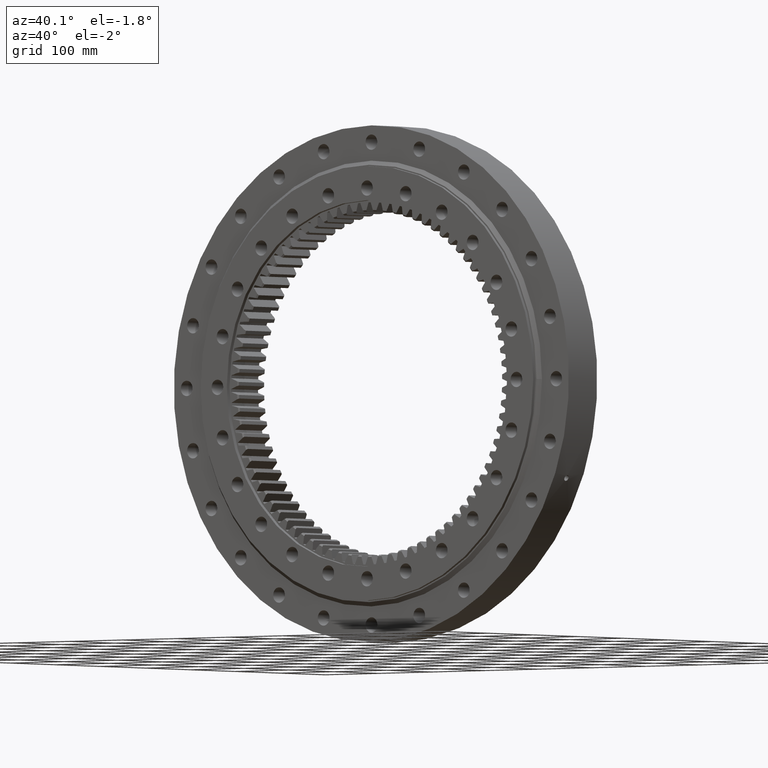
[diagram: clean part render]
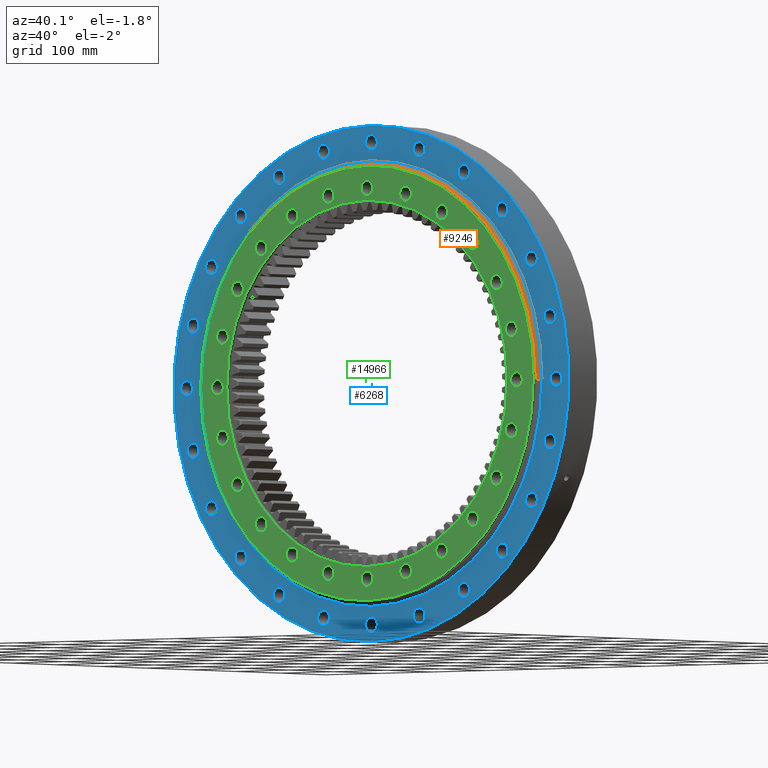
[diagram: same view with three faces highlighted in distinct colors, each labeled with its STEP entity id]
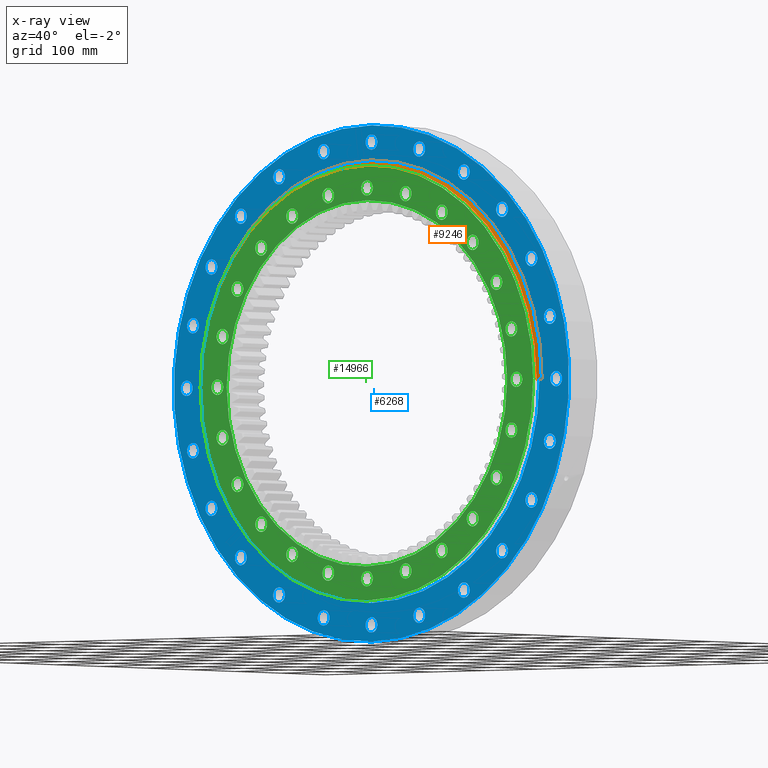
[diagram: x-ray of the same camera — body ghosted, the three highlighted faces saturated]
A machine part, auxiliary view with three faces highlighted in distinct colors.
The next image is the same camera in x-ray (body ghosted, the three faces saturated) — at least one of them is partly hidden behind the body in this view.
Their STEP definitions:

[orange] entity #9246 — the highlighted conical surface has half-angle 49.914 deg.
#823 = CARTESIAN_POINT ( 'NONE',  ( 313.4125000000001400, -33.05000000000005400, 3.874935553352120400E-014 ) ) ;
#1131 = CARTESIAN_POINT ( 'NONE',  ( 313.4125000000001400, -33.05000000000005400, 3.838196149377699800E-014 ) ) ;
#1615 = CONICAL_SURFACE ( 'NONE', #6333, 313.4125000000001400, 0.8711601305813130300 ) ;
#2287 = FACE_OUTER_BOUND ( 'NONE', #6317, .T. ) ;
#2786 = AXIS2_PLACEMENT_3D ( 'NONE', #4639, #4608, #4806 ) ;
#4608 = DIRECTION ( 'NONE',  ( 1.836909530733565900E-016, 1.000000000000000000, -0.0000000000000000000 ) ) ;
#4639 = CARTESIAN_POINT ( 'NONE',  ( -8.960920822886327200E-015, -28.00000000000007100, 0.0000000000000000000 ) ) ;
#4699 = EDGE_CURVE ( 'NONE', #18270, #10254, #11533, .T. ) ;
#4785 = VECTOR ( 'NONE', #21454, 1000.000000000000100 ) ;
#4806 = DIRECTION ( 'NONE',  ( -1.000000000000000000, 1.846533813899312900E-016, 0.0000000000000000000 ) ) ;
#4962 = LINE ( 'NONE', #21526, #4785 ) ;
#5472 = ORIENTED_EDGE ( 'NONE', *, *, #14817, .F. ) ;
#5522 = ORIENTED_EDGE ( 'NONE', *, *, #4699, .T. ) ;
#6028 = ORIENTED_EDGE ( 'NONE', *, *, #17222, .F. ) ;
#6162 = CIRCLE ( 'NONE', #2786, 319.4125000000000800 ) ;
#6192 = ORIENTED_EDGE ( 'NONE', *, *, #19098, .T. ) ;
#6317 = EDGE_LOOP ( 'NONE', ( #6192, #5522, #6028, #5472 ) ) ;
#6333 = AXIS2_PLACEMENT_3D ( 'NONE', #8977, #9139, #8739 ) ;
#7141 = AXIS2_PLACEMENT_3D ( 'NONE', #17358, #17209, #16945 ) ;
#7754 = DIRECTION ( 'NONE',  ( 0.7650765054985591000, 0.6439393921279495900, 9.369484935616527000E-017 ) ) ;
#8739 = DIRECTION ( 'NONE',  ( -1.000000000000000000, 1.771184979260808200E-016, 0.0000000000000000000 ) ) ;
#8977 = CARTESIAN_POINT ( 'NONE',  ( -9.888560135906766300E-015, -33.04999999999999700, 0.0000000000000000000 ) ) ;
#9139 = DIRECTION ( 'NONE',  ( 1.836909530733565900E-016, 1.000000000000000000, -0.0000000000000000000 ) ) ;
#9246 = ADVANCED_FACE ( 'NONE', ( #2287 ), #1615, .T. ) ;
#10254 = VERTEX_POINT ( 'NONE', #16505 ) ;
#11533 = LINE ( 'NONE', #1131, #12130 ) ;
#11747 = VERTEX_POINT ( 'NONE', #11778 ) ;
#11778 = CARTESIAN_POINT ( 'NONE',  ( -313.4125000000001400, -33.04999999999994000, 0.0000000000000000000 ) ) ;
#12130 = VECTOR ( 'NONE', #7754, 1000.000000000000000 ) ;
#14817 = EDGE_CURVE ( 'NONE', #11747, #15089, #4962, .T. ) ;
#15089 = VERTEX_POINT ( 'NONE', #16516 ) ;
#16505 = CARTESIAN_POINT ( 'NONE',  ( 319.4125000000000800, -28.00000000000012800, 3.911674957326540300E-014 ) ) ;
#16516 = CARTESIAN_POINT ( 'NONE',  ( -319.4125000000000800, -28.00000000000001100, 0.0000000000000000000 ) ) ;
#16945 = DIRECTION ( 'NONE',  ( -1.000000000000000000, 1.771184979260808200E-016, 0.0000000000000000000 ) ) ;
#17209 = DIRECTION ( 'NONE',  ( 1.836909530733565900E-016, 1.000000000000000000, -0.0000000000000000000 ) ) ;
#17222 = EDGE_CURVE ( 'NONE', #15089, #10254, #6162, .T. ) ;
#17358 = CARTESIAN_POINT ( 'NONE',  ( -9.888560135906766300E-015, -33.04999999999999700, 0.0000000000000000000 ) ) ;
#18270 = VERTEX_POINT ( 'NONE', #823 ) ;
#19038 = CIRCLE ( 'NONE', #7141, 313.4125000000001400 ) ;
#19098 = EDGE_CURVE ( 'NONE', #11747, #18270, #19038, .T. ) ;
#21454 = DIRECTION ( 'NONE',  ( -0.7650765054985589900, 0.6439393921279498200, 0.0000000000000000000 ) ) ;
#21526 = CARTESIAN_POINT ( 'NONE',  ( -313.4125000000001400, -33.04999999999994000, 0.0000000000000000000 ) ) ;

[blue] entity #6268 — the highlighted planar face has unit normal (-0, 1, 0).
#34 = VERTEX_POINT ( 'NONE', #18395 ) ;
#53 = CARTESIAN_POINT ( 'NONE',  ( -173.0000000000004800, -27.99999999999996400, 299.6447897094154200 ) ) ;
#75 = ORIENTED_EDGE ( 'NONE', *, *, #17804, .F. ) ;
#149 = AXIS2_PLACEMENT_3D ( 'NONE', #12088, #11112, #12257 ) ;
#196 = AXIS2_PLACEMENT_3D ( 'NONE', #22621, #22545, #5896 ) ;
#292 = DIRECTION ( 'NONE',  ( -0.8660254037844428200, 0.0000000000000000000, -0.4999999999999928900 ) ) ;
#381 = EDGE_CURVE ( 'NONE', #3671, #11678, #3235, .T. ) ;
#391 = EDGE_CURVE ( 'NONE', #7371, #2154, #22491, .T. ) ;
#437 = FACE_BOUND ( 'NONE', #10781, .T. ) ;
#597 = ORIENTED_EDGE ( 'NONE', *, *, #3484, .F. ) ;
#626 = AXIS2_PLACEMENT_3D ( 'NONE', #7564, #7539, #7500 ) ;
#639 = DIRECTION ( 'NONE',  ( 0.8660254037844371500, 0.0000000000000000000, -0.5000000000000025500 ) ) ;
#689 = EDGE_CURVE ( 'NONE', #4726, #5489, #4921, .T. ) ;
#790 = EDGE_CURVE ( 'NONE', #6559, #9143, #4842, .T. ) ;
#826 = DIRECTION ( 'NONE',  ( -0.7071067811865537900, 0.0000000000000000000, -0.7071067811865412400 ) ) ;
#855 = DIRECTION ( 'NONE',  ( 1.173697223544192200E-016, -1.000000000000000000, -3.494217355385783800E-017 ) ) ;
#875 = CARTESIAN_POINT ( 'NONE',  ( -244.6589462905439500, -27.99999999999995400, -244.6589462905468800 ) ) ;
#921 = DIRECTION ( 'NONE',  ( 1.173697223544192200E-016, -1.000000000000000000, -3.494217355385783800E-017 ) ) ;
#932 = AXIS2_PLACEMENT_3D ( 'NONE', #7092, #7108, #7171 ) ;
#948 = AXIS2_PLACEMENT_3D ( 'NONE', #3771, #3870, #3958 ) ;
#991 = FACE_BOUND ( 'NONE', #11088, .T. ) ;
#1000 = DIRECTION ( 'NONE',  ( -0.9659258262890708700, 0.0000000000000000000, -0.2588190451025110300 ) ) ;
#1009 = CIRCLE ( 'NONE', #20274, 11.00000000000001100 ) ;
#1031 = DIRECTION ( 'NONE',  ( 1.173697223544192200E-016, -1.000000000000000000, -3.494217355385783800E-017 ) ) ;
#1084 = AXIS2_PLACEMENT_3D ( 'NONE', #6483, #2326, #8192 ) ;
#1279 = FACE_BOUND ( 'NONE', #10901, .T. ) ;
#1323 = CIRCLE ( 'NONE', #14759, 11.00000000000001400 ) ;
#1333 = CARTESIAN_POINT ( 'NONE',  ( 299.6447897094174700, -27.99999999999989300, -172.9999999999970700 ) ) ;
#1336 = ORIENTED_EDGE ( 'NONE', *, *, #9797, .F. ) ;
#1393 = ORIENTED_EDGE ( 'NONE', *, *, #21451, .F. ) ;
#1403 = CIRCLE ( 'NONE', #16188, 11.00000000000000000 ) ;
#1445 = ORIENTED_EDGE ( 'NONE', *, *, #1742, .F. ) ;
#1561 = VERTEX_POINT ( 'NONE', #3766 ) ;
#1742 = EDGE_CURVE ( 'NONE', #13515, #12809, #20821, .T. ) ;
#1830 = AXIS2_PLACEMENT_3D ( 'NONE', #1333, #10418, #639 ) ;
#1852 = DIRECTION ( 'NONE',  ( -0.9659258262890655400, 0.0000000000000000000, 0.2588190451025311200 ) ) ;
#1881 = DIRECTION ( 'NONE',  ( 1.173697223544192200E-016, -1.000000000000000000, -3.494217355385783800E-017 ) ) ;
#1903 = ORIENTED_EDGE ( 'NONE', *, *, #12402, .F. ) ;
#1932 = CARTESIAN_POINT ( 'NONE',  ( -334.2103358960179700, -27.99999999999997500, 89.55138960547101600 ) ) ;
#1941 = CARTESIAN_POINT ( 'NONE',  ( 334.2103358960165500, -27.99999999999990100, 89.55138960547606100 ) ) ;
#1962 = DIRECTION ( 'NONE',  ( 1.173697223544192200E-016, -1.000000000000000000, -3.494217355385783800E-017 ) ) ;
#1984 = DIRECTION ( 'NONE',  ( 0.9659258262890693100, 0.0000000000000000000, 0.2588190451025169100 ) ) ;
#1991 = ORIENTED_EDGE ( 'NONE', *, *, #8621, .F. ) ;
#2002 = CIRCLE ( 'NONE', #16187, 11.00000000000000000 ) ;
#2111 = CIRCLE ( 'NONE', #8097, 11.00000000000001100 ) ;
#2154 = VERTEX_POINT ( 'NONE', #2679 ) ;
#2221 = VERTEX_POINT ( 'NONE', #16546 ) ;
#2305 = EDGE_CURVE ( 'NONE', #6820, #15684, #4306, .T. ) ;
#2318 = CARTESIAN_POINT ( 'NONE',  ( -244.6589462905460300, -27.99999999999996800, 233.6589462905448000 ) ) ;
#2326 = DIRECTION ( 'NONE',  ( 1.173697223544192200E-016, -1.000000000000000000, -3.494217355385783800E-017 ) ) ;
#2385 = CARTESIAN_POINT ( 'NONE',  ( -89.55138960546985100, -27.99999999999993600, -323.2103358960181900 ) ) ;
#2399 = AXIS2_PLACEMENT_3D ( 'NONE', #16213, #1031, #1000 ) ;
#2418 = ORIENTED_EDGE ( 'NONE', *, *, #12212, .F. ) ;
#2505 = AXIS2_PLACEMENT_3D ( 'NONE', #17969, #18023, #18064 ) ;
#2679 = CARTESIAN_POINT ( 'NONE',  ( 89.55138960547489500, -27.99999999999991500, -323.2103358960168300 ) ) ;
#2853 = ORIENTED_EDGE ( 'NONE', *, *, #14101, .F. ) ;
#2859 = CIRCLE ( 'NONE', #22119, 11.00000000000000500 ) ;
#2894 = CIRCLE ( 'NONE', #19360, 10.99999999999998000 ) ;
#2924 = ORIENTED_EDGE ( 'NONE', *, *, #19819, .F. ) ;
#2943 = EDGE_CURVE ( 'NONE', #9289, #11751, #1009, .T. ) ;
#3161 = EDGE_CURVE ( 'NONE', #10110, #15632, #16737, .T. ) ;
#3231 = AXIS2_PLACEMENT_3D ( 'NONE', #20822, #20795, #20774 ) ;
#3235 = CIRCLE ( 'NONE', #9221, 11.00000000000001100 ) ;
#3248 = CIRCLE ( 'NONE', #14612, 11.00000000000001600 ) ;
#3334 = FACE_BOUND ( 'NONE', #9217, .T. ) ;
#3375 = EDGE_CURVE ( 'NONE', #2154, #7371, #3248, .T. ) ;
#3384 = DIRECTION ( 'NONE',  ( 1.173697223544192200E-016, -1.000000000000000000, -3.494217355385783800E-017 ) ) ;
#3459 = CARTESIAN_POINT ( 'NONE',  ( 173.0000000000025600, -27.99999999999990400, -288.6447897094142800 ) ) ;
#3484 = EDGE_CURVE ( 'NONE', #18630, #18383, #20485, .T. ) ;
#3543 = EDGE_CURVE ( 'NONE', #18120, #9000, #2111, .T. ) ;
#3671 = VERTEX_POINT ( 'NONE', #8193 ) ;
#3766 = CARTESIAN_POINT ( 'NONE',  ( -172.9999999999981200, -27.99999999999994700, -310.6447897094168400 ) ) ;
#3771 = CARTESIAN_POINT ( 'NONE',  ( -346.0000000000000000, -27.99999999999997500, -1.401683763800976500E-012 ) ) ;
#3870 = DIRECTION ( 'NONE',  ( 1.173697223544192200E-016, -1.000000000000000000, -3.494217355385783800E-017 ) ) ;
#3909 = EDGE_CURVE ( 'NONE', #16366, #19813, #18283, .T. ) ;
#3958 = DIRECTION ( 'NONE',  ( -1.000000000000000000, 0.0000000000000000000, 1.052995516776064200E-014 ) ) ;
#3967 = CARTESIAN_POINT ( 'NONE',  ( 346.0000000000000000, -27.99999999999989300, 3.815832088561408700E-012 ) ) ;
#4030 = CIRCLE ( 'NONE', #21277, 10.99999999999999300 ) ;
#4148 = ORIENTED_EDGE ( 'NONE', *, *, #10298, .T. ) ;
#4228 = FACE_BOUND ( 'NONE', #13151, .T. ) ;
#4306 = CIRCLE ( 'NONE', #8059, 10.99999999999997200 ) ;
#4349 = CARTESIAN_POINT ( 'NONE',  ( -172.9999999999981200, -27.99999999999994700, -299.6447897094168400 ) ) ;
#4472 = ORIENTED_EDGE ( 'NONE', *, *, #13918, .F. ) ;
#4480 = AXIS2_PLACEMENT_3D ( 'NONE', #16525, #10688, #10655 ) ;
#4498 = EDGE_CURVE ( 'NONE', #16564, #19023, #13814, .T. ) ;
#4503 = FACE_BOUND ( 'NONE', #10274, .T. ) ;
#4618 = CARTESIAN_POINT ( 'NONE',  ( -299.6447897094148500, -27.99999999999996100, -173.0000000000015300 ) ) ;
#4726 = VERTEX_POINT ( 'NONE', #22526 ) ;
#4842 = CIRCLE ( 'NONE', #8325, 10.99999999999998000 ) ;
#4921 = CIRCLE ( 'NONE', #20677, 10.99999999999998000 ) ;
#4997 = CARTESIAN_POINT ( 'NONE',  ( -299.6447897094162200, -27.99999999999997500, 183.9999999999991800 ) ) ;
#5118 = FACE_BOUND ( 'NONE', #9553, .T. ) ;
#5330 = FACE_BOUND ( 'NONE', #9077, .T. ) ;
#5347 = CARTESIAN_POINT ( 'NONE',  ( 2.074946651388704600E-014, -27.99999999999994300, 314.5874999999999200 ) ) ;
#5489 = VERTEX_POINT ( 'NONE', #10393 ) ;
#5652 = EDGE_CURVE ( 'NONE', #17445, #8594, #21008, .T. ) ;
#5665 = AXIS2_PLACEMENT_3D ( 'NONE', #1932, #1881, #1852 ) ;
#5722 = FACE_BOUND ( 'NONE', #7677, .T. ) ;
#5758 = ORIENTED_EDGE ( 'NONE', *, *, #20164, .F. ) ;
#5896 = DIRECTION ( 'NONE',  ( 0.5000000000000007800, 0.0000000000000000000, 0.8660254037844382600 ) ) ;
#5945 = AXIS2_PLACEMENT_3D ( 'NONE', #17087, #17054, #17163 ) ;
#5951 = ORIENTED_EDGE ( 'NONE', *, *, #16920, .T. ) ;
#5980 = VERTEX_POINT ( 'NONE', #12525 ) ;
#5982 = FACE_BOUND ( 'NONE', #10250, .T. ) ;
#6026 = AXIS2_PLACEMENT_3D ( 'NONE', #22681, #22704, #22711 ) ;
#6029 = CIRCLE ( 'NONE', #948, 11.00000000000001100 ) ;
#6080 = CARTESIAN_POINT ( 'NONE',  ( 244.6589462905422700, -27.99999999999991500, 255.6589462905485800 ) ) ;
#6180 = ORIENTED_EDGE ( 'NONE', *, *, #4498, .F. ) ;
#6184 = FACE_BOUND ( 'NONE', #14651, .T. ) ;
#6268 = ADVANCED_FACE ( 'NONE', ( #991, #10478, #1279, #22575, #15877, #5722, #14704, #4503, #5982, #16668, #22516, #13019, #20398, #5118, #12719, #3334, #5330, #6318, #20663, #437, #9905, #12027, #18419, #4228, #6184, #16391 ), #11252, .F. ) ;
#6269 = EDGE_CURVE ( 'NONE', #10455, #8724, #2859, .T. ) ;
#6318 = FACE_BOUND ( 'NONE', #8945, .T. ) ;
#6483 = CARTESIAN_POINT ( 'NONE',  ( -334.2103358960179700, -27.99999999999997500, 89.55138960547101600 ) ) ;
#6559 = VERTEX_POINT ( 'NONE', #22778 ) ;
#6634 = AXIS2_PLACEMENT_3D ( 'NONE', #18453, #18426, #16025 ) ;
#6646 = AXIS2_PLACEMENT_3D ( 'NONE', #17302, #17207, #17336 ) ;
#6788 = CIRCLE ( 'NONE', #196, 10.99999999999999500 ) ;
#6809 = EDGE_CURVE ( 'NONE', #7774, #20115, #4030, .T. ) ;
#6820 = VERTEX_POINT ( 'NONE', #12588 ) ;
#6912 = AXIS2_PLACEMENT_3D ( 'NONE', #8674, #8656, #8781 ) ;
#7010 = EDGE_CURVE ( 'NONE', #22149, #14741, #19162, .T. ) ;
#7088 = DIRECTION ( 'NONE',  ( 1.173697223544192200E-016, -1.000000000000000000, -3.494217355385783800E-017 ) ) ;
#7092 = CARTESIAN_POINT ( 'NONE',  ( 346.0000000000000000, -27.99999999999989300, 3.815832088561408700E-012 ) ) ;
#7108 = DIRECTION ( 'NONE',  ( 1.173697223544192200E-016, -1.000000000000000000, -3.494217355385783800E-017 ) ) ;
#7112 = CARTESIAN_POINT ( 'NONE',  ( 299.6447897094174700, -27.99999999999989300, -172.9999999999970700 ) ) ;
#7123 = CIRCLE ( 'NONE', #18769, 10.99999999999998000 ) ;
#7137 = CARTESIAN_POINT ( 'NONE',  ( -172.9999999999981200, -27.99999999999994700, -299.6447897094168400 ) ) ;
#7148 = DIRECTION ( 'NONE',  ( 0.8660254037844371500, 0.0000000000000000000, -0.5000000000000025500 ) ) ;
#7171 = DIRECTION ( 'NONE',  ( 1.000000000000000000, 0.0000000000000000000, -3.546992490074383300E-015 ) ) ;
#7185 = DIRECTION ( 'NONE',  ( 1.173697223544192200E-016, -1.000000000000000000, -3.494217355385783800E-017 ) ) ;
#7189 = DIRECTION ( 'NONE',  ( -0.5000000000000086600, 0.0000000000000000000, -0.8660254037844337100 ) ) ;
#7340 = CIRCLE ( 'NONE', #17530, 11.00000000000001100 ) ;
#7371 = VERTEX_POINT ( 'NONE', #17915 ) ;
#7500 = DIRECTION ( 'NONE',  ( 5.551115123123597300E-017, 0.0000000000000000000, 1.000000000000000000 ) ) ;
#7515 = AXIS2_PLACEMENT_3D ( 'NONE', #9389, #9339, #9310 ) ;
#7539 = DIRECTION ( 'NONE',  ( 1.173697223544192200E-016, -1.000000000000000000, -3.494217355385783800E-017 ) ) ;
#7562 = CIRCLE ( 'NONE', #1830, 11.00000000000000900 ) ;
#7564 = CARTESIAN_POINT ( 'NONE',  ( -5.021576660434716800E-012, -27.99999999999994700, 346.0000000000000000 ) ) ;
#7583 = ORIENTED_EDGE ( 'NONE', *, *, #18065, .F. ) ;
#7599 = CIRCLE ( 'NONE', #2505, 10.99999999999999100 ) ;
#7677 = EDGE_LOOP ( 'NONE', ( #16703, #17244 ) ) ;
#7748 = CARTESIAN_POINT ( 'NONE',  ( 299.6447897094174700, -27.99999999999989300, -183.9999999999970700 ) ) ;
#7757 = DIRECTION ( 'NONE',  ( 1.173697223544192200E-016, -1.000000000000000000, -3.494217355385783800E-017 ) ) ;
#7761 = DIRECTION ( 'NONE',  ( 0.4999999999999947300, 0.0000000000000000000, -0.8660254037844417100 ) ) ;
#7774 = VERTEX_POINT ( 'NONE', #21833 ) ;
#8012 = DIRECTION ( 'NONE',  ( -0.5000000000000086600, 0.0000000000000000000, -0.8660254037844337100 ) ) ;
#8059 = AXIS2_PLACEMENT_3D ( 'NONE', #17123, #16860, #16834 ) ;
#8077 = CARTESIAN_POINT ( 'NONE',  ( 173.0000000000025600, -27.99999999999990400, -299.6447897094142800 ) ) ;
#8097 = AXIS2_PLACEMENT_3D ( 'NONE', #3967, #16643, #16639 ) ;
#8152 = EDGE_LOOP ( 'NONE', ( #20720, #15047 ) ) ;
#8167 = EDGE_CURVE ( 'NONE', #14372, #34, #18770, .T. ) ;
#8192 = DIRECTION ( 'NONE',  ( -0.9659258262890655400, 0.0000000000000000000, 0.2588190451025311200 ) ) ;
#8193 = CARTESIAN_POINT ( 'NONE',  ( 2.606213343426814900E-012, -27.99999999999992500, -357.0000000000000000 ) ) ;
#8303 = EDGE_LOOP ( 'NONE', ( #19391, #20186 ) ) ;
#8305 = DIRECTION ( 'NONE',  ( -0.4999999999999891200, 0.0000000000000000000, 0.8660254037844450400 ) ) ;
#8325 = AXIS2_PLACEMENT_3D ( 'NONE', #13206, #16225, #13162 ) ;
#8353 = CARTESIAN_POINT ( 'NONE',  ( 172.9999999999959900, -27.99999999999992500, 288.6447897094180300 ) ) ;
#8382 = CIRCLE ( 'NONE', #1084, 11.00000000000000900 ) ;
#8385 = VERTEX_POINT ( 'NONE', #3459 ) ;
#8472 = VERTEX_POINT ( 'NONE', #4997 ) ;
#8529 = CARTESIAN_POINT ( 'NONE',  ( 244.6589462905477000, -27.99999999999990100, -244.6589462905431600 ) ) ;
#8594 = VERTEX_POINT ( 'NONE', #6080 ) ;
#8621 = EDGE_CURVE ( 'NONE', #1561, #20150, #13728, .T. ) ;
#8627 = DIRECTION ( 'NONE',  ( 0.7071067811865450200, 0.0000000000000000000, -0.7071067811865501300 ) ) ;
#8653 = DIRECTION ( 'NONE',  ( 1.173697223544192200E-016, -1.000000000000000000, -3.494217355385783800E-017 ) ) ;
#8656 = DIRECTION ( 'NONE',  ( 1.173697223544192200E-016, -1.000000000000000000, -3.494217355385783800E-017 ) ) ;
#8674 = CARTESIAN_POINT ( 'NONE',  ( 244.6589462905477000, -27.99999999999990100, -244.6589462905431600 ) ) ;
#8724 = VERTEX_POINT ( 'NONE', #20602 ) ;
#8729 = CARTESIAN_POINT ( 'NONE',  ( 2.382547818148912400E-014, -27.99999999999995000, 370.0000000000000000 ) ) ;
#8751 = EDGE_CURVE ( 'NONE', #19023, #16564, #10190, .T. ) ;
#8753 = EDGE_CURVE ( 'NONE', #11151, #8472, #10789, .T. ) ;
#8781 = DIRECTION ( 'NONE',  ( 0.7071067811865450200, 0.0000000000000000000, -0.7071067811865501300 ) ) ;
#8801 = AXIS2_PLACEMENT_3D ( 'NONE', #16989, #9358, #10818 ) ;
#8856 = EDGE_CURVE ( 'NONE', #5489, #4726, #12200, .T. ) ;
#8945 = EDGE_LOOP ( 'NONE', ( #13452, #15528 ) ) ;
#9000 = VERTEX_POINT ( 'NONE', #13809 ) ;
#9077 = EDGE_LOOP ( 'NONE', ( #7583, #5758 ) ) ;
#9090 = CARTESIAN_POINT ( 'NONE',  ( 89.55138960546752000, -27.99999999999993600, 334.2103358960188200 ) ) ;
#9120 = DIRECTION ( 'NONE',  ( 1.173697223544192200E-016, -1.000000000000000000, -3.494217355385783800E-017 ) ) ;
#9143 = VERTEX_POINT ( 'NONE', #15797 ) ;
#9151 = DIRECTION ( 'NONE',  ( 0.2588190451025216800, 0.0000000000000000000, 0.9659258262890679800 ) ) ;
#9217 = EDGE_LOOP ( 'NONE', ( #1393, #4472 ) ) ;
#9221 = AXIS2_PLACEMENT_3D ( 'NONE', #21772, #21598, #21546 ) ;
#9289 = VERTEX_POINT ( 'NONE', #9570 ) ;
#9310 = DIRECTION ( 'NONE',  ( -0.8660254037844326000, 0.0000000000000000000, 0.5000000000000105500 ) ) ;
#9316 = EDGE_CURVE ( 'NONE', #19903, #8385, #1323, .T. ) ;
#9333 = CARTESIAN_POINT ( 'NONE',  ( -299.6447897094162200, -27.99999999999997500, 172.9999999999991500 ) ) ;
#9339 = DIRECTION ( 'NONE',  ( 1.173697223544192200E-016, -1.000000000000000000, -3.494217355385783800E-017 ) ) ;
#9358 = DIRECTION ( 'NONE',  ( 1.173697223544192200E-016, -1.000000000000000000, -3.494217355385783800E-017 ) ) ;
#9374 = EDGE_CURVE ( 'NONE', #9000, #18120, #23074, .T. ) ;
#9389 = CARTESIAN_POINT ( 'NONE',  ( -299.6447897094162200, -27.99999999999997500, 172.9999999999991500 ) ) ;
#9523 = EDGE_LOOP ( 'NONE', ( #22293, #22886 ) ) ;
#9553 = EDGE_LOOP ( 'NONE', ( #22007, #22052 ) ) ;
#9570 = CARTESIAN_POINT ( 'NONE',  ( -346.0000000000000000, -27.99999999999997500, -11.00000000000140300 ) ) ;
#9701 = CIRCLE ( 'NONE', #18895, 10.99999999999999300 ) ;
#9797 = EDGE_CURVE ( 'NONE', #5980, #12505, #22167, .T. ) ;
#9820 = CIRCLE ( 'NONE', #10522, 10.99999999999997200 ) ;
#9852 = EDGE_LOOP ( 'NONE', ( #21723, #22029 ) ) ;
#9860 = CARTESIAN_POINT ( 'NONE',  ( -244.6589462905439500, -27.99999999999995400, -244.6589462905468800 ) ) ;
#9897 = EDGE_LOOP ( 'NONE', ( #10306, #20681 ) ) ;
#9905 = FACE_BOUND ( 'NONE', #15230, .T. ) ;
#10012 = EDGE_LOOP ( 'NONE', ( #597, #75 ) ) ;
#10057 = CARTESIAN_POINT ( 'NONE',  ( 244.6589462905422700, -27.99999999999991500, 233.6589462905485600 ) ) ;
#10110 = VERTEX_POINT ( 'NONE', #8353 ) ;
#10138 = EDGE_LOOP ( 'NONE', ( #1903, #1991 ) ) ;
#10176 = AXIS2_PLACEMENT_3D ( 'NONE', #875, #855, #826 ) ;
#10190 = CIRCLE ( 'NONE', #16138, 314.5874999999999200 ) ;
#10250 = EDGE_LOOP ( 'NONE', ( #1445, #2853 ) ) ;
#10274 = EDGE_LOOP ( 'NONE', ( #18317, #1336 ) ) ;
#10298 = EDGE_CURVE ( 'NONE', #10538, #13694, #20750, .T. ) ;
#10306 = ORIENTED_EDGE ( 'NONE', *, *, #13066, .F. ) ;
#10376 = EDGE_LOOP ( 'NONE', ( #17218, #17569 ) ) ;
#10393 = CARTESIAN_POINT ( 'NONE',  ( 299.6447897094136600, -27.99999999999990800, 184.0000000000036400 ) ) ;
#10418 = DIRECTION ( 'NONE',  ( 1.173697223544192200E-016, -1.000000000000000000, -3.494217355385783800E-017 ) ) ;
#10451 = AXIS2_PLACEMENT_3D ( 'NONE', #21304, #21249, #21193 ) ;
#10455 = VERTEX_POINT ( 'NONE', #18115 ) ;
#10469 = CARTESIAN_POINT ( 'NONE',  ( -334.2103358960171700, -27.99999999999996800, -89.55138960547371600 ) ) ;
#10478 = FACE_BOUND ( 'NONE', #8303, .T. ) ;
#10522 = AXIS2_PLACEMENT_3D ( 'NONE', #53, #921, #8305 ) ;
#10538 = VERTEX_POINT ( 'NONE', #18161 ) ;
#10602 = DIRECTION ( 'NONE',  ( 1.173697223544192200E-016, -1.000000000000000000, -3.494217355385783800E-017 ) ) ;
#10608 = CARTESIAN_POINT ( 'NONE',  ( -299.6447897094148500, -27.99999999999996100, -162.0000000000015300 ) ) ;
#10655 = DIRECTION ( 'NONE',  ( -7.038473828917530100E-015, 0.0000000000000000000, -1.000000000000000000 ) ) ;
#10685 = EDGE_LOOP ( 'NONE', ( #15847, #15994 ) ) ;
#10688 = DIRECTION ( 'NONE',  ( 1.173697223544192200E-016, -1.000000000000000000, -3.494217355385783800E-017 ) ) ;
#10781 = EDGE_LOOP ( 'NONE', ( #17752, #17931 ) ) ;
#10789 = CIRCLE ( 'NONE', #23000, 11.00000000000000000 ) ;
#10818 = DIRECTION ( 'NONE',  ( 0.7071067811865486800, 0.0000000000000000000, 0.7071067811865462400 ) ) ;
#10825 = EDGE_LOOP ( 'NONE', ( #21686, #16884 ) ) ;
#10901 = EDGE_LOOP ( 'NONE', ( #20148, #20235 ) ) ;
#10922 = CIRCLE ( 'NONE', #4480, 11.00000000000001100 ) ;
#10926 = CARTESIAN_POINT ( 'NONE',  ( 3.286352225923729900E-015, -27.99999999999993200, -9.783808595080170100E-016 ) ) ;
#11042 = CARTESIAN_POINT ( 'NONE',  ( 334.2103358960185900, -27.99999999999989300, -78.55138960546870000 ) ) ;
#11088 = EDGE_LOOP ( 'NONE', ( #18908, #19117 ) ) ;
#11112 = DIRECTION ( 'NONE',  ( -1.173697223544192200E-016, 1.000000000000000000, 3.494217355385783800E-017 ) ) ;
#11151 = VERTEX_POINT ( 'NONE', #17345 ) ;
#11202 = EDGE_CURVE ( 'NONE', #8724, #10455, #17644, .T. ) ;
#11240 = CARTESIAN_POINT ( 'NONE',  ( 2.608781700232964700E-012, -27.99999999999992500, -334.9999999999999400 ) ) ;
#11252 = PLANE ( 'NONE',  #149 ) ;
#11409 = AXIS2_PLACEMENT_3D ( 'NONE', #15132, #15135, #15161 ) ;
#11525 = VERTEX_POINT ( 'NONE', #7748 ) ;
#11608 = EDGE_CURVE ( 'NONE', #11813, #19660, #16524, .T. ) ;
#11635 = AXIS2_PLACEMENT_3D ( 'NONE', #16428, #12669, #12748 ) ;
#11678 = VERTEX_POINT ( 'NONE', #11240 ) ;
#11751 = VERTEX_POINT ( 'NONE', #12023 ) ;
#11813 = VERTEX_POINT ( 'NONE', #13863 ) ;
#12007 = CARTESIAN_POINT ( 'NONE',  ( -244.6589462905439500, -27.99999999999995400, -233.6589462905468800 ) ) ;
#12023 = CARTESIAN_POINT ( 'NONE',  ( -346.0000000000000000, -27.99999999999997500, 10.99999999999860000 ) ) ;
#12027 = FACE_BOUND ( 'NONE', #14776, .T. ) ;
#12059 = DIRECTION ( 'NONE',  ( -0.9659258262890708700, 0.0000000000000000000, -0.2588190451025110300 ) ) ;
#12088 = CARTESIAN_POINT ( 'NONE',  ( 2.382547818148912400E-014, -27.99999999999995000, 370.0000000000000000 ) ) ;
#12200 = CIRCLE ( 'NONE', #6026, 10.99999999999998000 ) ;
#12212 = EDGE_CURVE ( 'NONE', #19612, #20555, #14496, .T. ) ;
#12257 = DIRECTION ( 'NONE',  ( -5.551115123125782700E-017, 3.494217355385783100E-017, -1.000000000000000000 ) ) ;
#12346 = CARTESIAN_POINT ( 'NONE',  ( 334.2103358960165500, -27.99999999999990100, 89.55138960547606100 ) ) ;
#12402 = EDGE_CURVE ( 'NONE', #20150, #1561, #13979, .T. ) ;
#12425 = CIRCLE ( 'NONE', #21476, 11.00000000000002100 ) ;
#12441 = EDGE_CURVE ( 'NONE', #8472, #11151, #13665, .T. ) ;
#12505 = VERTEX_POINT ( 'NONE', #10608 ) ;
#12509 = CARTESIAN_POINT ( 'NONE',  ( 3.286352225923730300E-015, -27.99999999999993600, -9.783808595080172100E-016 ) ) ;
#12517 = VERTEX_POINT ( 'NONE', #11042 ) ;
#12525 = CARTESIAN_POINT ( 'NONE',  ( -299.6447897094148500, -27.99999999999996100, -184.0000000000015600 ) ) ;
#12544 = EDGE_CURVE ( 'NONE', #34, #14372, #13226, .T. ) ;
#12587 = DIRECTION ( 'NONE',  ( 5.551115123125782700E-017, -3.750753461571474700E-017, 1.000000000000000000 ) ) ;
#12588 = CARTESIAN_POINT ( 'NONE',  ( -173.0000000000004800, -27.99999999999996400, 288.6447897094154200 ) ) ;
#12608 = CARTESIAN_POINT ( 'NONE',  ( -89.55138960547256500, -27.99999999999995400, 334.2103358960174500 ) ) ;
#12614 = DIRECTION ( 'NONE',  ( 0.9659258262890693100, 0.0000000000000000000, 0.2588190451025169100 ) ) ;
#12638 = DIRECTION ( 'NONE',  ( 1.173697223544192200E-016, -1.000000000000000000, -3.494217355385783800E-017 ) ) ;
#12664 = DIRECTION ( 'NONE',  ( -0.2588190451025075300, 0.0000000000000000000, 0.9659258262890719800 ) ) ;
#12669 = DIRECTION ( 'NONE',  ( 1.173697223544192200E-016, -1.000000000000000000, -3.494217355385783800E-017 ) ) ;
#12687 = CIRCLE ( 'NONE', #20517, 10.99999999999998000 ) ;
#12719 = FACE_BOUND ( 'NONE', #9523, .T. ) ;
#12721 = DIRECTION ( 'NONE',  ( 1.173697223544192200E-016, -1.000000000000000000, -3.494217355385783800E-017 ) ) ;
#12748 = DIRECTION ( 'NONE',  ( 0.9659258262890670900, 0.0000000000000000000, -0.2588190451025252400 ) ) ;
#12785 = DIRECTION ( 'NONE',  ( -1.000000000000000000, 0.0000000000000000000, 1.052995516776064200E-014 ) ) ;
#12809 = VERTEX_POINT ( 'NONE', #20033 ) ;
#12811 = DIRECTION ( 'NONE',  ( 1.173697223544192200E-016, -1.000000000000000000, -3.494217355385783800E-017 ) ) ;
#12871 = ORIENTED_EDGE ( 'NONE', *, *, #15156, .F. ) ;
#13019 = FACE_BOUND ( 'NONE', #9897, .T. ) ;
#13066 = EDGE_CURVE ( 'NONE', #11678, #3671, #10922, .T. ) ;
#13151 = EDGE_LOOP ( 'NONE', ( #2418, #2924 ) ) ;
#13162 = DIRECTION ( 'NONE',  ( 0.2588190451025216800, 0.0000000000000000000, 0.9659258262890679800 ) ) ;
#13206 = CARTESIAN_POINT ( 'NONE',  ( 89.55138960546752000, -27.99999999999993600, 334.2103358960188200 ) ) ;
#13207 = EDGE_CURVE ( 'NONE', #15684, #6820, #9820, .T. ) ;
#13226 = CIRCLE ( 'NONE', #19465, 11.00000000000002300 ) ;
#13232 = DIRECTION ( 'NONE',  ( 5.551115123125782700E-017, -3.308567840699596900E-017, 1.000000000000000000 ) ) ;
#13234 = EDGE_CURVE ( 'NONE', #20115, #7774, #9701, .T. ) ;
#13452 = ORIENTED_EDGE ( 'NONE', *, *, #3543, .F. ) ;
#13515 = VERTEX_POINT ( 'NONE', #12007 ) ;
#13529 = EDGE_CURVE ( 'NONE', #19813, #16366, #8382, .T. ) ;
#13665 = CIRCLE ( 'NONE', #7515, 11.00000000000000000 ) ;
#13694 = VERTEX_POINT ( 'NONE', #8729 ) ;
#13728 = CIRCLE ( 'NONE', #13738, 10.99999999999998600 ) ;
#13738 = AXIS2_PLACEMENT_3D ( 'NONE', #7137, #7185, #7189 ) ;
#13809 = CARTESIAN_POINT ( 'NONE',  ( 346.0000000000000000, -27.99999999999989300, -10.99999999999618400 ) ) ;
#13814 = CIRCLE ( 'NONE', #16797, 314.5874999999999200 ) ;
#13863 = CARTESIAN_POINT ( 'NONE',  ( 244.6589462905477000, -27.99999999999990100, -233.6589462905431600 ) ) ;
#13918 = EDGE_CURVE ( 'NONE', #11525, #22590, #7562, .T. ) ;
#13979 = CIRCLE ( 'NONE', #22143, 10.99999999999998600 ) ;
#14014 = CIRCLE ( 'NONE', #22759, 370.0000000000000000 ) ;
#14096 = EDGE_LOOP ( 'NONE', ( #5951, #4148 ) ) ;
#14101 = EDGE_CURVE ( 'NONE', #12809, #13515, #7123, .T. ) ;
#14188 = EDGE_CURVE ( 'NONE', #15632, #10110, #6788, .T. ) ;
#14361 = DIRECTION ( 'NONE',  ( 0.8660254037844393700, 0.0000000000000000000, 0.4999999999999987800 ) ) ;
#14369 = DIRECTION ( 'NONE',  ( 1.173697223544192200E-016, -1.000000000000000000, -3.494217355385783800E-017 ) ) ;
#14372 = VERTEX_POINT ( 'NONE', #15473 ) ;
#14398 = CARTESIAN_POINT ( 'NONE',  ( 299.6447897094136600, -27.99999999999990800, 173.0000000000036100 ) ) ;
#14408 = CARTESIAN_POINT ( 'NONE',  ( 299.6447897094174700, -27.99999999999989300, -161.9999999999970700 ) ) ;
#14496 = CIRCLE ( 'NONE', #626, 11.00000000000001100 ) ;
#14513 = EDGE_CURVE ( 'NONE', #11751, #9289, #6029, .T. ) ;
#14612 = AXIS2_PLACEMENT_3D ( 'NONE', #20622, #20616, #20601 ) ;
#14651 = EDGE_LOOP ( 'NONE', ( #19569, #6180 ) ) ;
#14704 = FACE_BOUND ( 'NONE', #10376, .T. ) ;
#14741 = VERTEX_POINT ( 'NONE', #22098 ) ;
#14759 = AXIS2_PLACEMENT_3D ( 'NONE', #8077, #7757, #7761 ) ;
#14776 = EDGE_LOOP ( 'NONE', ( #20029, #20574 ) ) ;
#14852 = CARTESIAN_POINT ( 'NONE',  ( -346.0000000000000000, -27.99999999999997500, -1.401683763800976500E-012 ) ) ;
#15018 = EDGE_LOOP ( 'NONE', ( #20532, #12871 ) ) ;
#15047 = ORIENTED_EDGE ( 'NONE', *, *, #8753, .F. ) ;
#15113 = CARTESIAN_POINT ( 'NONE',  ( -334.2103358960179700, -27.99999999999997500, 78.55138960547101600 ) ) ;
#15132 = CARTESIAN_POINT ( 'NONE',  ( -244.6589462905460300, -27.99999999999996800, 244.6589462905448300 ) ) ;
#15135 = DIRECTION ( 'NONE',  ( 1.173697223544192200E-016, -1.000000000000000000, -3.494217355385783800E-017 ) ) ;
#15156 = EDGE_CURVE ( 'NONE', #9143, #6559, #2894, .T. ) ;
#15161 = DIRECTION ( 'NONE',  ( -0.7071067811865386900, 0.0000000000000000000, 0.7071067811865563400 ) ) ;
#15185 = CIRCLE ( 'NONE', #21930, 11.00000000000000900 ) ;
#15230 = EDGE_LOOP ( 'NONE', ( #18446, #19395 ) ) ;
#15231 = CARTESIAN_POINT ( 'NONE',  ( -89.55138960547256500, -27.99999999999995400, 334.2103358960174500 ) ) ;
#15471 = EDGE_CURVE ( 'NONE', #12505, #5980, #1403, .T. ) ;
#15473 = CARTESIAN_POINT ( 'NONE',  ( 334.2103358960165500, -27.99999999999990100, 78.55138960547607500 ) ) ;
#15528 = ORIENTED_EDGE ( 'NONE', *, *, #9374, .F. ) ;
#15530 = CIRCLE ( 'NONE', #22629, 10.99999999999999800 ) ;
#15561 = DIRECTION ( 'NONE',  ( 1.173697223544192200E-016, -1.000000000000000000, -3.494217355385783800E-017 ) ) ;
#15632 = VERTEX_POINT ( 'NONE', #22230 ) ;
#15656 = CARTESIAN_POINT ( 'NONE',  ( 346.0000000000000000, -27.99999999999989300, 11.00000000000381700 ) ) ;
#15684 = VERTEX_POINT ( 'NONE', #22605 ) ;
#15797 = CARTESIAN_POINT ( 'NONE',  ( 89.55138960546752000, -27.99999999999993600, 323.2103358960188200 ) ) ;
#15847 = ORIENTED_EDGE ( 'NONE', *, *, #13529, .F. ) ;
#15877 = FACE_BOUND ( 'NONE', #10685, .T. ) ;
#15924 = CIRCLE ( 'NONE', #5945, 11.00000000000001400 ) ;
#15994 = ORIENTED_EDGE ( 'NONE', *, *, #3909, .F. ) ;
#16025 = DIRECTION ( 'NONE',  ( 0.5000000000000007800, 0.0000000000000000000, 0.8660254037844382600 ) ) ;
#16138 = AXIS2_PLACEMENT_3D ( 'NONE', #21394, #21286, #19422 ) ;
#16187 = AXIS2_PLACEMENT_3D ( 'NONE', #8529, #8653, #8627 ) ;
#16188 = AXIS2_PLACEMENT_3D ( 'NONE', #4618, #20041, #292 ) ;
#16209 = DIRECTION ( 'NONE',  ( 1.173697223544192200E-016, -1.000000000000000000, -3.494217355385783800E-017 ) ) ;
#16213 = CARTESIAN_POINT ( 'NONE',  ( -334.2103358960171700, -27.99999999999996800, -89.55138960547371600 ) ) ;
#16225 = DIRECTION ( 'NONE',  ( 1.173697223544192200E-016, -1.000000000000000000, -3.494217355385783800E-017 ) ) ;
#16233 = CARTESIAN_POINT ( 'NONE',  ( -244.6589462905460300, -27.99999999999996800, 244.6589462905448300 ) ) ;
#16262 = DIRECTION ( 'NONE',  ( -0.7071067811865386900, 0.0000000000000000000, 0.7071067811865563400 ) ) ;
#16268 = CARTESIAN_POINT ( 'NONE',  ( -5.027407595415019200E-012, -27.99999999999994700, 334.9999999999999400 ) ) ;
#16366 = VERTEX_POINT ( 'NONE', #15113 ) ;
#16391 = FACE_OUTER_BOUND ( 'NONE', #14096, .T. ) ;
#16428 = CARTESIAN_POINT ( 'NONE',  ( 334.2103358960185900, -27.99999999999989300, -89.55138960546870000 ) ) ;
#16455 = EDGE_CURVE ( 'NONE', #8385, #19903, #15924, .T. ) ;
#16524 = CIRCLE ( 'NONE', #6912, 11.00000000000000000 ) ;
#16525 = CARTESIAN_POINT ( 'NONE',  ( 2.612044278407116400E-012, -27.99999999999992500, -346.0000000000000000 ) ) ;
#16546 = CARTESIAN_POINT ( 'NONE',  ( 334.2103358960185900, -27.99999999999989300, -100.5513896054687000 ) ) ;
#16564 = VERTEX_POINT ( 'NONE', #19530 ) ;
#16566 = AXIS2_PLACEMENT_3D ( 'NONE', #1941, #1962, #1984 ) ;
#16639 = DIRECTION ( 'NONE',  ( 1.000000000000000000, 0.0000000000000000000, -3.546992490074383300E-015 ) ) ;
#16643 = DIRECTION ( 'NONE',  ( 1.173697223544192200E-016, -1.000000000000000000, -3.494217355385783800E-017 ) ) ;
#16668 = FACE_BOUND ( 'NONE', #10138, .T. ) ;
#16703 = ORIENTED_EDGE ( 'NONE', *, *, #14513, .F. ) ;
#16719 = DIRECTION ( 'NONE',  ( 1.173697223544192200E-016, -1.000000000000000000, -3.494217355385783800E-017 ) ) ;
#16737 = CIRCLE ( 'NONE', #6634, 10.99999999999999500 ) ;
#16797 = AXIS2_PLACEMENT_3D ( 'NONE', #10926, #15561, #13232 ) ;
#16834 = DIRECTION ( 'NONE',  ( -0.4999999999999891200, 0.0000000000000000000, 0.8660254037844450400 ) ) ;
#16860 = DIRECTION ( 'NONE',  ( 1.173697223544192200E-016, -1.000000000000000000, -3.494217355385783800E-017 ) ) ;
#16884 = ORIENTED_EDGE ( 'NONE', *, *, #8167, .F. ) ;
#16920 = EDGE_CURVE ( 'NONE', #13694, #10538, #14014, .T. ) ;
#16989 = CARTESIAN_POINT ( 'NONE',  ( 244.6589462905422700, -27.99999999999991500, 244.6589462905485800 ) ) ;
#17054 = DIRECTION ( 'NONE',  ( 1.173697223544192200E-016, -1.000000000000000000, -3.494217355385783800E-017 ) ) ;
#17087 = CARTESIAN_POINT ( 'NONE',  ( 173.0000000000025600, -27.99999999999990400, -299.6447897094142800 ) ) ;
#17123 = CARTESIAN_POINT ( 'NONE',  ( -173.0000000000004800, -27.99999999999996400, 299.6447897094154200 ) ) ;
#17163 = DIRECTION ( 'NONE',  ( 0.4999999999999947300, 0.0000000000000000000, -0.8660254037844417100 ) ) ;
#17207 = DIRECTION ( 'NONE',  ( 1.173697223544192200E-016, -1.000000000000000000, -3.494217355385783800E-017 ) ) ;
#17218 = ORIENTED_EDGE ( 'NONE', *, *, #11202, .F. ) ;
#17244 = ORIENTED_EDGE ( 'NONE', *, *, #2943, .F. ) ;
#17302 = CARTESIAN_POINT ( 'NONE',  ( -299.6447897094148500, -27.99999999999996100, -173.0000000000015300 ) ) ;
#17336 = DIRECTION ( 'NONE',  ( -0.8660254037844428200, 0.0000000000000000000, -0.4999999999999928900 ) ) ;
#17345 = CARTESIAN_POINT ( 'NONE',  ( -299.6447897094162200, -27.99999999999997500, 161.9999999999991500 ) ) ;
#17379 = EDGE_CURVE ( 'NONE', #19660, #11813, #2002, .T. ) ;
#17445 = VERTEX_POINT ( 'NONE', #10057 ) ;
#17530 = AXIS2_PLACEMENT_3D ( 'NONE', #23094, #22969, #22939 ) ;
#17569 = ORIENTED_EDGE ( 'NONE', *, *, #6269, .F. ) ;
#17644 = CIRCLE ( 'NONE', #2399, 11.00000000000000500 ) ;
#17746 = CARTESIAN_POINT ( 'NONE',  ( -89.55138960547256500, -27.99999999999995400, 345.2103358960174500 ) ) ;
#17752 = ORIENTED_EDGE ( 'NONE', *, *, #8856, .F. ) ;
#17768 = EDGE_CURVE ( 'NONE', #8594, #17445, #12425, .T. ) ;
#17804 = EDGE_CURVE ( 'NONE', #18383, #18630, #15530, .T. ) ;
#17816 = CARTESIAN_POINT ( 'NONE',  ( -172.9999999999981200, -27.99999999999994700, -288.6447897094168400 ) ) ;
#17915 = CARTESIAN_POINT ( 'NONE',  ( 89.55138960547489500, -27.99999999999991500, -345.2103358960168300 ) ) ;
#17931 = ORIENTED_EDGE ( 'NONE', *, *, #689, .F. ) ;
#17969 = CARTESIAN_POINT ( 'NONE',  ( 334.2103358960185900, -27.99999999999989300, -89.55138960546870000 ) ) ;
#18023 = DIRECTION ( 'NONE',  ( 1.173697223544192200E-016, -1.000000000000000000, -3.494217355385783800E-017 ) ) ;
#18064 = DIRECTION ( 'NONE',  ( 0.9659258262890670900, 0.0000000000000000000, -0.2588190451025252400 ) ) ;
#18065 = EDGE_CURVE ( 'NONE', #12517, #2221, #20399, .T. ) ;
#18115 = CARTESIAN_POINT ( 'NONE',  ( -334.2103358960171700, -27.99999999999996800, -100.5513896054737200 ) ) ;
#18120 = VERTEX_POINT ( 'NONE', #15656 ) ;
#18151 = CARTESIAN_POINT ( 'NONE',  ( -89.55138960546985100, -27.99999999999993600, -345.2103358960182500 ) ) ;
#18161 = CARTESIAN_POINT ( 'NONE',  ( -6.585105752401746400E-014, -27.99999999999992200, -370.0000000000000000 ) ) ;
#18283 = CIRCLE ( 'NONE', #5665, 11.00000000000000900 ) ;
#18317 = ORIENTED_EDGE ( 'NONE', *, *, #15471, .F. ) ;
#18383 = VERTEX_POINT ( 'NONE', #18151 ) ;
#18395 = CARTESIAN_POINT ( 'NONE',  ( 334.2103358960165500, -27.99999999999990100, 100.5513896054760600 ) ) ;
#18419 = FACE_BOUND ( 'NONE', #15018, .T. ) ;
#18426 = DIRECTION ( 'NONE',  ( 1.173697223544192200E-016, -1.000000000000000000, -3.494217355385783800E-017 ) ) ;
#18446 = ORIENTED_EDGE ( 'NONE', *, *, #17768, .F. ) ;
#18453 = CARTESIAN_POINT ( 'NONE',  ( 172.9999999999959900, -27.99999999999992500, 299.6447897094180300 ) ) ;
#18630 = VERTEX_POINT ( 'NONE', #2385 ) ;
#18689 = DIRECTION ( 'NONE',  ( -0.7071067811865537900, 0.0000000000000000000, -0.7071067811865412400 ) ) ;
#18769 = AXIS2_PLACEMENT_3D ( 'NONE', #9860, #18776, #18689 ) ;
#18770 = CIRCLE ( 'NONE', #16566, 11.00000000000002300 ) ;
#18776 = DIRECTION ( 'NONE',  ( 1.173697223544192200E-016, -1.000000000000000000, -3.494217355385783800E-017 ) ) ;
#18809 = CARTESIAN_POINT ( 'NONE',  ( 173.0000000000025600, -27.99999999999990400, -310.6447897094142800 ) ) ;
#18895 = AXIS2_PLACEMENT_3D ( 'NONE', #15231, #21326, #22983 ) ;
#18908 = ORIENTED_EDGE ( 'NONE', *, *, #13234, .F. ) ;
#19023 = VERTEX_POINT ( 'NONE', #5347 ) ;
#19117 = ORIENTED_EDGE ( 'NONE', *, *, #6809, .F. ) ;
#19162 = CIRCLE ( 'NONE', #11409, 10.99999999999998000 ) ;
#19360 = AXIS2_PLACEMENT_3D ( 'NONE', #9090, #9120, #9151 ) ;
#19362 = CARTESIAN_POINT ( 'NONE',  ( 244.6589462905422700, -27.99999999999991500, 244.6589462905485800 ) ) ;
#19381 = DIRECTION ( 'NONE',  ( 1.173697223544192200E-016, -1.000000000000000000, -3.494217355385783800E-017 ) ) ;
#19391 = ORIENTED_EDGE ( 'NONE', *, *, #13207, .F. ) ;
#19395 = ORIENTED_EDGE ( 'NONE', *, *, #5652, .F. ) ;
#19409 = DIRECTION ( 'NONE',  ( 0.7071067811865486800, 0.0000000000000000000, 0.7071067811865462400 ) ) ;
#19422 = DIRECTION ( 'NONE',  ( 5.551115123125782700E-017, -3.308567840699596900E-017, 1.000000000000000000 ) ) ;
#19465 = AXIS2_PLACEMENT_3D ( 'NONE', #12346, #12721, #12614 ) ;
#19530 = CARTESIAN_POINT ( 'NONE',  ( -5.341884331121599100E-014, -27.99999999999992200, -314.5874999999999200 ) ) ;
#19569 = ORIENTED_EDGE ( 'NONE', *, *, #8751, .F. ) ;
#19612 = VERTEX_POINT ( 'NONE', #22834 ) ;
#19660 = VERTEX_POINT ( 'NONE', #22712 ) ;
#19813 = VERTEX_POINT ( 'NONE', #21268 ) ;
#19819 = EDGE_CURVE ( 'NONE', #20555, #19612, #7340, .T. ) ;
#19903 = VERTEX_POINT ( 'NONE', #18809 ) ;
#20029 = ORIENTED_EDGE ( 'NONE', *, *, #14188, .F. ) ;
#20033 = CARTESIAN_POINT ( 'NONE',  ( -244.6589462905439500, -27.99999999999995400, -255.6589462905468500 ) ) ;
#20041 = DIRECTION ( 'NONE',  ( 1.173697223544192200E-016, -1.000000000000000000, -3.494217355385783800E-017 ) ) ;
#20115 = VERTEX_POINT ( 'NONE', #17746 ) ;
#20148 = ORIENTED_EDGE ( 'NONE', *, *, #20523, .F. ) ;
#20150 = VERTEX_POINT ( 'NONE', #17816 ) ;
#20164 = EDGE_CURVE ( 'NONE', #2221, #12517, #7599, .T. ) ;
#20186 = ORIENTED_EDGE ( 'NONE', *, *, #2305, .F. ) ;
#20235 = ORIENTED_EDGE ( 'NONE', *, *, #7010, .F. ) ;
#20274 = AXIS2_PLACEMENT_3D ( 'NONE', #14852, #12811, #12785 ) ;
#20398 = FACE_BOUND ( 'NONE', #9852, .T. ) ;
#20399 = CIRCLE ( 'NONE', #11635, 10.99999999999999100 ) ;
#20485 = CIRCLE ( 'NONE', #3231, 10.99999999999999800 ) ;
#20517 = AXIS2_PLACEMENT_3D ( 'NONE', #16233, #16209, #16262 ) ;
#20523 = EDGE_CURVE ( 'NONE', #14741, #22149, #12687, .T. ) ;
#20532 = ORIENTED_EDGE ( 'NONE', *, *, #790, .F. ) ;
#20555 = VERTEX_POINT ( 'NONE', #16268 ) ;
#20574 = ORIENTED_EDGE ( 'NONE', *, *, #3161, .F. ) ;
#20601 = DIRECTION ( 'NONE',  ( 0.2588190451025145200, 0.0000000000000000000, -0.9659258262890698700 ) ) ;
#20602 = CARTESIAN_POINT ( 'NONE',  ( -334.2103358960171700, -27.99999999999996800, -78.55138960547373000 ) ) ;
#20616 = DIRECTION ( 'NONE',  ( 1.173697223544192200E-016, -1.000000000000000000, -3.494217355385783800E-017 ) ) ;
#20622 = CARTESIAN_POINT ( 'NONE',  ( 89.55138960547488100, -27.99999999999991500, -334.2103358960168300 ) ) ;
#20663 = FACE_BOUND ( 'NONE', #10825, .T. ) ;
#20677 = AXIS2_PLACEMENT_3D ( 'NONE', #14398, #14369, #14361 ) ;
#20681 = ORIENTED_EDGE ( 'NONE', *, *, #381, .F. ) ;
#20720 = ORIENTED_EDGE ( 'NONE', *, *, #12441, .F. ) ;
#20750 = CIRCLE ( 'NONE', #22738, 370.0000000000000000 ) ;
#20774 = DIRECTION ( 'NONE',  ( -0.2588190451025276200, 0.0000000000000000000, -0.9659258262890664200 ) ) ;
#20795 = DIRECTION ( 'NONE',  ( 1.173697223544192200E-016, -1.000000000000000000, -3.494217355385783800E-017 ) ) ;
#20821 = CIRCLE ( 'NONE', #10176, 10.99999999999998000 ) ;
#20822 = CARTESIAN_POINT ( 'NONE',  ( -89.55138960546985100, -27.99999999999993600, -334.2103358960182500 ) ) ;
#21008 = CIRCLE ( 'NONE', #8801, 11.00000000000002100 ) ;
#21127 = CARTESIAN_POINT ( 'NONE',  ( -89.55138960546985100, -27.99999999999993600, -334.2103358960182500 ) ) ;
#21145 = DIRECTION ( 'NONE',  ( 1.173697223544192200E-016, -1.000000000000000000, -3.494217355385783800E-017 ) ) ;
#21189 = CARTESIAN_POINT ( 'NONE',  ( 3.286352225923730300E-015, -27.99999999999993600, -9.783808595080172100E-016 ) ) ;
#21193 = DIRECTION ( 'NONE',  ( 0.2588190451025145200, 0.0000000000000000000, -0.9659258262890698700 ) ) ;
#21200 = DIRECTION ( 'NONE',  ( -0.2588190451025276200, 0.0000000000000000000, -0.9659258262890664200 ) ) ;
#21249 = DIRECTION ( 'NONE',  ( 1.173697223544192200E-016, -1.000000000000000000, -3.494217355385783800E-017 ) ) ;
#21268 = CARTESIAN_POINT ( 'NONE',  ( -334.2103358960179700, -27.99999999999997500, 100.5513896054710200 ) ) ;
#21277 = AXIS2_PLACEMENT_3D ( 'NONE', #12608, #12638, #12664 ) ;
#21286 = DIRECTION ( 'NONE',  ( 1.173697223544192200E-016, -1.000000000000000000, -3.494217355385783800E-017 ) ) ;
#21304 = CARTESIAN_POINT ( 'NONE',  ( 89.55138960547488100, -27.99999999999991500, -334.2103358960168300 ) ) ;
#21326 = DIRECTION ( 'NONE',  ( 1.173697223544192200E-016, -1.000000000000000000, -3.494217355385783800E-017 ) ) ;
#21394 = CARTESIAN_POINT ( 'NONE',  ( 3.286352225923729900E-015, -27.99999999999993200, -9.783808595080170100E-016 ) ) ;
#21451 = EDGE_CURVE ( 'NONE', #22590, #11525, #15185, .T. ) ;
#21476 = AXIS2_PLACEMENT_3D ( 'NONE', #19362, #19381, #19409 ) ;
#21493 = DIRECTION ( 'NONE',  ( 1.173697223544192200E-016, -1.000000000000000000, -3.494217355385783800E-017 ) ) ;
#21546 = DIRECTION ( 'NONE',  ( -7.038473828917530100E-015, 0.0000000000000000000, -1.000000000000000000 ) ) ;
#21598 = DIRECTION ( 'NONE',  ( 1.173697223544192200E-016, -1.000000000000000000, -3.494217355385783800E-017 ) ) ;
#21686 = ORIENTED_EDGE ( 'NONE', *, *, #12544, .F. ) ;
#21723 = ORIENTED_EDGE ( 'NONE', *, *, #3375, .F. ) ;
#21772 = CARTESIAN_POINT ( 'NONE',  ( 2.612044278407116400E-012, -27.99999999999992500, -346.0000000000000000 ) ) ;
#21833 = CARTESIAN_POINT ( 'NONE',  ( -89.55138960547256500, -27.99999999999995400, 323.2103358960174500 ) ) ;
#21843 = DIRECTION ( 'NONE',  ( 5.551115123125782700E-017, -3.750753461571474700E-017, 1.000000000000000000 ) ) ;
#21930 = AXIS2_PLACEMENT_3D ( 'NONE', #7112, #7088, #7148 ) ;
#22007 = ORIENTED_EDGE ( 'NONE', *, *, #16455, .F. ) ;
#22029 = ORIENTED_EDGE ( 'NONE', *, *, #391, .F. ) ;
#22052 = ORIENTED_EDGE ( 'NONE', *, *, #9316, .F. ) ;
#22098 = CARTESIAN_POINT ( 'NONE',  ( -244.6589462905460300, -27.99999999999996800, 255.6589462905448000 ) ) ;
#22119 = AXIS2_PLACEMENT_3D ( 'NONE', #10469, #10602, #12059 ) ;
#22143 = AXIS2_PLACEMENT_3D ( 'NONE', #4349, #3384, #8012 ) ;
#22149 = VERTEX_POINT ( 'NONE', #2318 ) ;
#22167 = CIRCLE ( 'NONE', #6646, 11.00000000000000000 ) ;
#22230 = CARTESIAN_POINT ( 'NONE',  ( 172.9999999999959900, -27.99999999999992500, 310.6447897094180300 ) ) ;
#22293 = ORIENTED_EDGE ( 'NONE', *, *, #11608, .F. ) ;
#22357 = DIRECTION ( 'NONE',  ( 1.173697223544192200E-016, -1.000000000000000000, -3.494217355385783800E-017 ) ) ;
#22491 = CIRCLE ( 'NONE', #10451, 11.00000000000001600 ) ;
#22516 = FACE_BOUND ( 'NONE', #10012, .T. ) ;
#22526 = CARTESIAN_POINT ( 'NONE',  ( 299.6447897094136600, -27.99999999999990800, 162.0000000000036100 ) ) ;
#22545 = DIRECTION ( 'NONE',  ( 1.173697223544192200E-016, -1.000000000000000000, -3.494217355385783800E-017 ) ) ;
#22575 = FACE_BOUND ( 'NONE', #8152, .T. ) ;
#22590 = VERTEX_POINT ( 'NONE', #14408 ) ;
#22605 = CARTESIAN_POINT ( 'NONE',  ( -173.0000000000004800, -27.99999999999996400, 310.6447897094154200 ) ) ;
#22621 = CARTESIAN_POINT ( 'NONE',  ( 172.9999999999959900, -27.99999999999992500, 299.6447897094180300 ) ) ;
#22629 = AXIS2_PLACEMENT_3D ( 'NONE', #21127, #21145, #21200 ) ;
#22681 = CARTESIAN_POINT ( 'NONE',  ( 299.6447897094136600, -27.99999999999990800, 173.0000000000036100 ) ) ;
#22704 = DIRECTION ( 'NONE',  ( 1.173697223544192200E-016, -1.000000000000000000, -3.494217355385783800E-017 ) ) ;
#22711 = DIRECTION ( 'NONE',  ( 0.8660254037844393700, 0.0000000000000000000, 0.4999999999999987800 ) ) ;
#22712 = CARTESIAN_POINT ( 'NONE',  ( 244.6589462905477000, -27.99999999999990100, -255.6589462905431600 ) ) ;
#22721 = DIRECTION ( 'NONE',  ( -0.8660254037844326000, 0.0000000000000000000, 0.5000000000000105500 ) ) ;
#22738 = AXIS2_PLACEMENT_3D ( 'NONE', #12509, #16719, #12587 ) ;
#22759 = AXIS2_PLACEMENT_3D ( 'NONE', #21189, #21493, #21843 ) ;
#22778 = CARTESIAN_POINT ( 'NONE',  ( 89.55138960546752000, -27.99999999999993600, 345.2103358960188800 ) ) ;
#22834 = CARTESIAN_POINT ( 'NONE',  ( -5.020966037771173000E-012, -27.99999999999994700, 357.0000000000000000 ) ) ;
#22886 = ORIENTED_EDGE ( 'NONE', *, *, #17379, .F. ) ;
#22939 = DIRECTION ( 'NONE',  ( 5.551115123123597300E-017, 0.0000000000000000000, 1.000000000000000000 ) ) ;
#22969 = DIRECTION ( 'NONE',  ( 1.173697223544192200E-016, -1.000000000000000000, -3.494217355385783800E-017 ) ) ;
#22983 = DIRECTION ( 'NONE',  ( -0.2588190451025075300, 0.0000000000000000000, 0.9659258262890719800 ) ) ;
#23000 = AXIS2_PLACEMENT_3D ( 'NONE', #9333, #22357, #22721 ) ;
#23074 = CIRCLE ( 'NONE', #932, 11.00000000000001100 ) ;
#23094 = CARTESIAN_POINT ( 'NONE',  ( -5.021576660434716800E-012, -27.99999999999994700, 346.0000000000000000 ) ) ;

[green] entity #14966 — the highlighted planar face has unit normal (0, 1, -0).
#38 = AXIS2_PLACEMENT_3D ( 'NONE', #18350, #20050, #20014 ) ;
#55 = VERTEX_POINT ( 'NONE', #12989 ) ;
#129 = VERTEX_POINT ( 'NONE', #6951 ) ;
#205 = CIRCLE ( 'NONE', #1204, 11.00000000000002100 ) ;
#234 = AXIS2_PLACEMENT_3D ( 'NONE', #16822, #16865, #16973 ) ;
#242 = EDGE_CURVE ( 'NONE', #19913, #15234, #19617, .T. ) ;
#279 = CARTESIAN_POINT ( 'NONE',  ( 242.4871130596442600, -38.00000000000000000, -139.9999999999976400 ) ) ;
#334 = VERTEX_POINT ( 'NONE', #17348 ) ;
#624 = VERTEX_POINT ( 'NONE', #15525 ) ;
#690 = EDGE_CURVE ( 'NONE', #19827, #624, #5374, .T. ) ;
#789 = VERTEX_POINT ( 'NONE', #13388 ) ;
#997 = CARTESIAN_POINT ( 'NONE',  ( 270.4592313609399500, -38.00000000000000000, -83.46933262870304300 ) ) ;
#1026 = VERTEX_POINT ( 'NONE', #17371 ) ;
#1032 = EDGE_CURVE ( 'NONE', #11368, #2294, #3264, .T. ) ;
#1036 = CIRCLE ( 'NONE', #19983, 10.99999999999998000 ) ;
#1090 = VERTEX_POINT ( 'NONE', #10554 ) ;
#1204 = AXIS2_PLACEMENT_3D ( 'NONE', #17941, #17963, #17983 ) ;
#1289 = CIRCLE ( 'NONE', #12430, 11.00000000000002300 ) ;
#1356 = VERTEX_POINT ( 'NONE', #6053 ) ;
#1912 = ORIENTED_EDGE ( 'NONE', *, *, #14083, .T. ) ;
#2001 = CARTESIAN_POINT ( 'NONE',  ( -197.9898987322321800, -37.99999999999997200, -208.9898987322344500 ) ) ;
#2032 = EDGE_LOOP ( 'NONE', ( #8718, #8120 ) ) ;
#2045 = AXIS2_PLACEMENT_3D ( 'NONE', #13408, #13413, #13044 ) ;
#2052 = EDGE_CURVE ( 'NONE', #14568, #16172, #19475, .T. ) ;
#2105 = CIRCLE ( 'NONE', #20083, 11.00000000000001100 ) ;
#2136 = VERTEX_POINT ( 'NONE', #17256 ) ;
#2208 = ORIENTED_EDGE ( 'NONE', *, *, #4870, .T. ) ;
#2227 = EDGE_CURVE ( 'NONE', #11703, #18785, #4001, .T. ) ;
#2236 = CARTESIAN_POINT ( 'NONE',  ( 242.4871130596411600, -37.99999999999997900, 129.0000000000029600 ) ) ;
#2294 = VERTEX_POINT ( 'NONE', #16167 ) ;
#2337 = EDGE_CURVE ( 'NONE', #2294, #11368, #4195, .T. ) ;
#2405 = EDGE_CURVE ( 'NONE', #15679, #17148, #1036, .T. ) ;
#2462 = ORIENTED_EDGE ( 'NONE', *, *, #20987, .F. ) ;
#2490 = ORIENTED_EDGE ( 'NONE', *, *, #18269, .F. ) ;
#2516 = EDGE_LOOP ( 'NONE', ( #8838, #8644 ) ) ;
#2529 = ORIENTED_EDGE ( 'NONE', *, *, #2052, .F. ) ;
#2594 = CIRCLE ( 'NONE', #38, 11.00000000000002000 ) ;
#2638 = CIRCLE ( 'NONE', #18456, 11.00000000000000500 ) ;
#2670 = CIRCLE ( 'NONE', #6524, 11.00000000000001100 ) ;
#2692 = EDGE_CURVE ( 'NONE', #334, #13810, #2638, .T. ) ;
#2744 = ORIENTED_EDGE ( 'NONE', *, *, #242, .F. ) ;
#2806 = CARTESIAN_POINT ( 'NONE',  ( -139.9999999999985200, -37.99999999999997200, -242.4871130596437500 ) ) ;
#2888 = CIRCLE ( 'NONE', #17464, 11.00000000000001100 ) ;
#2913 = CARTESIAN_POINT ( 'NONE',  ( -3.007581756300123200E-015, -37.99999999999997200, 1.668524913528522400E-015 ) ) ;
#2953 = CARTESIAN_POINT ( 'NONE',  ( -242.4871130596432400, -37.99999999999993600, 128.9999999999993700 ) ) ;
#2995 = EDGE_LOOP ( 'NONE', ( #7544, #7042 ) ) ;
#3022 = EDGE_CURVE ( 'NONE', #8897, #12268, #5893, .T. ) ;
#3032 = DIRECTION ( 'NONE',  ( -7.914688832368751900E-017, -1.000000000000000000, 6.617654413443253200E-017 ) ) ;
#3037 = ORIENTED_EDGE ( 'NONE', *, *, #16823, .F. ) ;
#3041 = ORIENTED_EDGE ( 'NONE', *, *, #7818, .F. ) ;
#3100 = EDGE_LOOP ( 'NONE', ( #8270, #7962 ) ) ;
#3125 = DIRECTION ( 'NONE',  ( 1.000000000000000000, 0.0000000000000000000, -3.546992490074383300E-015 ) ) ;
#3149 = ORIENTED_EDGE ( 'NONE', *, *, #3022, .F. ) ;
#3154 = EDGE_LOOP ( 'NONE', ( #8142, #7520 ) ) ;
#3155 = DIRECTION ( 'NONE',  ( -7.914688832368751900E-017, -1.000000000000000000, 6.617654413443253200E-017 ) ) ;
#3169 = EDGE_CURVE ( 'NONE', #21022, #16557, #16786, .T. ) ;
#3188 = AXIS2_PLACEMENT_3D ( 'NONE', #5232, #5264, #7253 ) ;
#3201 = ORIENTED_EDGE ( 'NONE', *, *, #9098, .F. ) ;
#3264 = CIRCLE ( 'NONE', #5537, 262.5000000000000000 ) ;
#3270 = EDGE_CURVE ( 'NONE', #55, #22812, #2888, .T. ) ;
#3275 = EDGE_CURVE ( 'NONE', #15255, #5938, #2594, .T. ) ;
#3367 = EDGE_LOOP ( 'NONE', ( #7536, #7666 ) ) ;
#3398 = ORIENTED_EDGE ( 'NONE', *, *, #10432, .F. ) ;
#3495 = DIRECTION ( 'NONE',  ( -7.914688832368751900E-017, -1.000000000000000000, 6.617654413443253200E-017 ) ) ;
#3499 = CARTESIAN_POINT ( 'NONE',  ( 197.9898987322351300, -38.00000000000000000, -197.9898987322315000 ) ) ;
#3520 = DIRECTION ( 'NONE',  ( 0.7071067811865438000, 0.0000000000000000000, -0.7071067811865513500 ) ) ;
#3545 = EDGE_LOOP ( 'NONE', ( #7501, #7084 ) ) ;
#3560 = CARTESIAN_POINT ( 'NONE',  ( 197.9898987322308400, -37.99999999999997200, 186.9898987322358400 ) ) ;
#3561 = ORIENTED_EDGE ( 'NONE', *, *, #21345, .F. ) ;
#3595 = CIRCLE ( 'NONE', #234, 11.00000000000000900 ) ;
#3764 = EDGE_CURVE ( 'NONE', #17636, #789, #14218, .T. ) ;
#3776 = ORIENTED_EDGE ( 'NONE', *, *, #18397, .F. ) ;
#3795 = ORIENTED_EDGE ( 'NONE', *, *, #11995, .F. ) ;
#3802 = FACE_OUTER_BOUND ( 'NONE', #8646, .T. ) ;
#3806 = EDGE_LOOP ( 'NONE', ( #7067, #6786 ) ) ;
#3846 = FACE_BOUND ( 'NONE', #8625, .T. ) ;
#3871 = FACE_BOUND ( 'NONE', #8214, .T. ) ;
#3892 = FACE_BOUND ( 'NONE', #7990, .T. ) ;
#3920 = FACE_BOUND ( 'NONE', #7932, .T. ) ;
#3925 = ORIENTED_EDGE ( 'NONE', *, *, #2227, .F. ) ;
#3926 = EDGE_LOOP ( 'NONE', ( #6546, #6807 ) ) ;
#3946 = FACE_BOUND ( 'NONE', #7462, .T. ) ;
#3972 = FACE_BOUND ( 'NONE', #7220, .T. ) ;
#3991 = FACE_BOUND ( 'NONE', #7173, .T. ) ;
#4001 = CIRCLE ( 'NONE', #3188, 11.00000000000002700 ) ;
#4004 = CARTESIAN_POINT ( 'NONE',  ( -4.039778499293369200E-012, -37.99999999999995000, 280.0000000000000000 ) ) ;
#4013 = FACE_BOUND ( 'NONE', #6837, .T. ) ;
#4039 = FACE_BOUND ( 'NONE', #6214, .T. ) ;
#4040 = EDGE_LOOP ( 'NONE', ( #6239, #6386 ) ) ;
#4059 = CARTESIAN_POINT ( 'NONE',  ( 280.0000000000000000, -37.99999999999999300, 3.061670851338099900E-012 ) ) ;
#4067 = FACE_BOUND ( 'NONE', #5553, .T. ) ;
#4070 = FACE_BOUND ( 'NONE', #5084, .T. ) ;
#4073 = FACE_BOUND ( 'NONE', #5061, .T. ) ;
#4095 = FACE_BOUND ( 'NONE', #4717, .T. ) ;
#4114 = FACE_BOUND ( 'NONE', #4448, .T. ) ;
#4119 = CARTESIAN_POINT ( 'NONE',  ( 1.180153610687612400E-014, -37.99999999999995000, 262.5000000000000000 ) ) ;
#4138 = FACE_BOUND ( 'NONE', #4322, .T. ) ;
#4155 = FACE_BOUND ( 'NONE', #4040, .T. ) ;
#4182 = FACE_BOUND ( 'NONE', #3926, .T. ) ;
#4195 = CIRCLE ( 'NONE', #12949, 262.5000000000000000 ) ;
#4208 = ORIENTED_EDGE ( 'NONE', *, *, #22962, .F. ) ;
#4210 = FACE_BOUND ( 'NONE', #3806, .T. ) ;
#4214 = ORIENTED_EDGE ( 'NONE', *, *, #12651, .F. ) ;
#4234 = FACE_BOUND ( 'NONE', #2995, .T. ) ;
#4244 = DIRECTION ( 'NONE',  ( -7.914688832368751900E-017, -1.000000000000000000, 6.617654413443251900E-017 ) ) ;
#4250 = DIRECTION ( 'NONE',  ( 0.4999999999999947300, 0.0000000000000000000, -0.8660254037844417100 ) ) ;
#4254 = FACE_BOUND ( 'NONE', #3367, .T. ) ;
#4276 = FACE_BOUND ( 'NONE', #3545, .T. ) ;
#4281 = CARTESIAN_POINT ( 'NONE',  ( 197.9898987322308400, -37.99999999999997200, 197.9898987322358400 ) ) ;
#4296 = FACE_BOUND ( 'NONE', #3154, .T. ) ;
#4303 = DIRECTION ( 'NONE',  ( 0.7071067811865486800, 0.0000000000000000000, 0.7071067811865462400 ) ) ;
#4321 = FACE_BOUND ( 'NONE', #3100, .T. ) ;
#4322 = EDGE_LOOP ( 'NONE', ( #6212, #6173 ) ) ;
#4328 = DIRECTION ( 'NONE',  ( -7.914688832368751900E-017, -1.000000000000000000, 6.617654413443253200E-017 ) ) ;
#4342 = ORIENTED_EDGE ( 'NONE', *, *, #17268, .F. ) ;
#4347 = FACE_BOUND ( 'NONE', #2516, .T. ) ;
#4364 = ORIENTED_EDGE ( 'NONE', *, *, #18774, .F. ) ;
#4378 = FACE_BOUND ( 'NONE', #2032, .T. ) ;
#4448 = EDGE_LOOP ( 'NONE', ( #5707, #5923 ) ) ;
#4538 = ORIENTED_EDGE ( 'NONE', *, *, #2692, .F. ) ;
#4614 = CIRCLE ( 'NONE', #16325, 11.00000000000001600 ) ;
#4649 = CARTESIAN_POINT ( 'NONE',  ( -5.823559172445061900E-014, -37.99999999999999300, -311.4125000000000800 ) ) ;
#4687 = CARTESIAN_POINT ( 'NONE',  ( 140.0000000000021000, -38.00000000000000000, -242.4871130596416400 ) ) ;
#4717 = EDGE_LOOP ( 'NONE', ( #5128, #5289 ) ) ;
#4724 = CIRCLE ( 'NONE', #16948, 11.00000000000001100 ) ;
#4769 = DIRECTION ( 'NONE',  ( -0.9659258262890708700, 0.0000000000000000000, -0.2588190451025110300 ) ) ;
#4808 = ORIENTED_EDGE ( 'NONE', *, *, #6084, .F. ) ;
#4854 = DIRECTION ( 'NONE',  ( -7.914688832368751900E-017, -1.000000000000000000, 6.617654413443253200E-017 ) ) ;
#4870 = EDGE_CURVE ( 'NONE', #6442, #21655, #19026, .T. ) ;
#4919 = DIRECTION ( 'NONE',  ( 0.8660254037844360400, 0.0000000000000000000, -0.5000000000000044400 ) ) ;
#4940 = DIRECTION ( 'NONE',  ( -7.914688832368753200E-017, -1.000000000000000000, 6.617654413443253200E-017 ) ) ;
#4942 = CARTESIAN_POINT ( 'NONE',  ( -270.4592313609388200, -37.99999999999995700, -72.46933262870703600 ) ) ;
#4981 = ORIENTED_EDGE ( 'NONE', *, *, #16528, .F. ) ;
#5007 = ORIENTED_EDGE ( 'NONE', *, *, #5694, .F. ) ;
#5052 = CIRCLE ( 'NONE', #18443, 11.00000000000001200 ) ;
#5061 = EDGE_LOOP ( 'NONE', ( #5007, #5704 ) ) ;
#5084 = EDGE_LOOP ( 'NONE', ( #5725, #5545 ) ) ;
#5128 = ORIENTED_EDGE ( 'NONE', *, *, #3169, .F. ) ;
#5232 = CARTESIAN_POINT ( 'NONE',  ( -242.4871130596432400, -37.99999999999993600, 139.9999999999993700 ) ) ;
#5264 = DIRECTION ( 'NONE',  ( -7.914688832368751900E-017, -1.000000000000000000, 6.617654413443253200E-017 ) ) ;
#5289 = ORIENTED_EDGE ( 'NONE', *, *, #17944, .F. ) ;
#5374 = CIRCLE ( 'NONE', #19555, 10.99999999999999500 ) ;
#5389 = DIRECTION ( 'NONE',  ( -0.4999999999999887900, 0.0000000000000000000, 0.8660254037844451500 ) ) ;
#5483 = CARTESIAN_POINT ( 'NONE',  ( 242.4871130596442600, -38.00000000000000000, -128.9999999999976400 ) ) ;
#5537 = AXIS2_PLACEMENT_3D ( 'NONE', #10950, #10972, #11006 ) ;
#5545 = ORIENTED_EDGE ( 'NONE', *, *, #3275, .F. ) ;
#5553 = EDGE_LOOP ( 'NONE', ( #4981, #4808 ) ) ;
#5674 = DIRECTION ( 'NONE',  ( -1.000000000000000000, 0.0000000000000000000, 1.052995516776066100E-014 ) ) ;
#5694 = EDGE_CURVE ( 'NONE', #17638, #1090, #5052, .T. ) ;
#5699 = DIRECTION ( 'NONE',  ( -7.914688832368751900E-017, -1.000000000000000000, 6.617654413443253200E-017 ) ) ;
#5704 = ORIENTED_EDGE ( 'NONE', *, *, #8578, .F. ) ;
#5707 = ORIENTED_EDGE ( 'NONE', *, *, #20391, .F. ) ;
#5725 = ORIENTED_EDGE ( 'NONE', *, *, #14135, .F. ) ;
#5739 = CARTESIAN_POINT ( 'NONE',  ( -280.0000000000000000, -37.99999999999995000, -1.101411884231728500E-012 ) ) ;
#5893 = CIRCLE ( 'NONE', #12803, 10.99999999999999300 ) ;
#5923 = ORIENTED_EDGE ( 'NONE', *, *, #3270, .F. ) ;
#5927 = VERTEX_POINT ( 'NONE', #15607 ) ;
#5938 = VERTEX_POINT ( 'NONE', #8864 ) ;
#5993 = EDGE_CURVE ( 'NONE', #20531, #18606, #8737, .T. ) ;
#6014 = CARTESIAN_POINT ( 'NONE',  ( 1.427928462650396200E-014, -37.99999999999995000, 311.4125000000000800 ) ) ;
#6025 = CARTESIAN_POINT ( 'NONE',  ( -140.0000000000004000, -37.99999999999994300, 242.4871130596426100 ) ) ;
#6033 = DIRECTION ( 'NONE',  ( -7.914688832368751900E-017, -1.000000000000000000, 6.617654413443253200E-017 ) ) ;
#6044 = DIRECTION ( 'NONE',  ( -7.914688832368751900E-017, -1.000000000000000000, 6.617654413443253200E-017 ) ) ;
#6053 = CARTESIAN_POINT ( 'NONE',  ( 140.0000000000021000, -38.00000000000000000, -231.4871130596416400 ) ) ;
#6056 = DIRECTION ( 'NONE',  ( 5.551115123125783900E-017, 6.684600557691705000E-017, 1.000000000000000000 ) ) ;
#6084 = EDGE_CURVE ( 'NONE', #5927, #11069, #17181, .T. ) ;
#6102 = EDGE_CURVE ( 'NONE', #19749, #1356, #18163, .T. ) ;
#6161 = DIRECTION ( 'NONE',  ( -0.9659258262890708700, 0.0000000000000000000, -0.2588190451025110300 ) ) ;
#6173 = ORIENTED_EDGE ( 'NONE', *, *, #14943, .F. ) ;
#6202 = VERTEX_POINT ( 'NONE', #17377 ) ;
#6212 = ORIENTED_EDGE ( 'NONE', *, *, #13389, .F. ) ;
#6214 = EDGE_LOOP ( 'NONE', ( #4538, #4364 ) ) ;
#6239 = ORIENTED_EDGE ( 'NONE', *, *, #9689, .F. ) ;
#6244 = CARTESIAN_POINT ( 'NONE',  ( -139.9999999999985200, -37.99999999999997200, -242.4871130596437500 ) ) ;
#6247 = DIRECTION ( 'NONE',  ( -7.914688832368751900E-017, -1.000000000000000000, 6.617654413443253200E-017 ) ) ;
#6297 = DIRECTION ( 'NONE',  ( -0.5000000000000074400, 0.0000000000000000000, -0.8660254037844342700 ) ) ;
#6386 = ORIENTED_EDGE ( 'NONE', *, *, #6102, .F. ) ;
#6439 = CIRCLE ( 'NONE', #12131, 11.00000000000002100 ) ;
#6442 = VERTEX_POINT ( 'NONE', #4649 ) ;
#6524 = AXIS2_PLACEMENT_3D ( 'NONE', #5739, #5699, #5674 ) ;
#6546 = ORIENTED_EDGE ( 'NONE', *, *, #21945, .F. ) ;
#6609 = VERTEX_POINT ( 'NONE', #10495 ) ;
#6637 = DIRECTION ( 'NONE',  ( -7.914688832368751900E-017, -1.000000000000000000, 6.617654413443253200E-017 ) ) ;
#6711 = CARTESIAN_POINT ( 'NONE',  ( -140.0000000000004000, -37.99999999999994300, 242.4871130596426100 ) ) ;
#6744 = AXIS2_PLACEMENT_3D ( 'NONE', #18594, #18546, #15315 ) ;
#6786 = ORIENTED_EDGE ( 'NONE', *, *, #13198, .F. ) ;
#6807 = ORIENTED_EDGE ( 'NONE', *, *, #9344, .F. ) ;
#6831 = AXIS2_PLACEMENT_3D ( 'NONE', #19941, #10034, #13722 ) ;
#6836 = CIRCLE ( 'NONE', #21045, 11.00000000000002000 ) ;
#6837 = EDGE_LOOP ( 'NONE', ( #4342, #4214 ) ) ;
#6913 = CARTESIAN_POINT ( 'NONE',  ( -72.46933262870611300, -37.99999999999994300, 259.4592313609390400 ) ) ;
#6951 = CARTESIAN_POINT ( 'NONE',  ( 197.9898987322308400, -37.99999999999997200, 208.9898987322358700 ) ) ;
#6963 = CIRCLE ( 'NONE', #22532, 11.00000000000000900 ) ;
#7042 = ORIENTED_EDGE ( 'NONE', *, *, #13970, .F. ) ;
#7067 = ORIENTED_EDGE ( 'NONE', *, *, #18565, .F. ) ;
#7082 = DIRECTION ( 'NONE',  ( 0.9659258262890693100, 0.0000000000000000000, 0.2588190451025169100 ) ) ;
#7084 = ORIENTED_EDGE ( 'NONE', *, *, #3764, .F. ) ;
#7085 = CIRCLE ( 'NONE', #16448, 311.4125000000000800 ) ;
#7103 = DIRECTION ( 'NONE',  ( -7.914688832368751900E-017, -1.000000000000000000, 6.617654413443253200E-017 ) ) ;
#7122 = CARTESIAN_POINT ( 'NONE',  ( 72.46933262870209100, -37.99999999999995700, 259.4592313609401200 ) ) ;
#7159 = CARTESIAN_POINT ( 'NONE',  ( 270.4592313609383000, -37.99999999999998600, 72.46933262870892600 ) ) ;
#7173 = EDGE_LOOP ( 'NONE', ( #4208, #3776 ) ) ;
#7193 = CIRCLE ( 'NONE', #11604, 10.99999999999999100 ) ;
#7197 = DIRECTION ( 'NONE',  ( -0.4999999999999887900, 0.0000000000000000000, 0.8660254037844451500 ) ) ;
#7206 = CARTESIAN_POINT ( 'NONE',  ( 72.46933262870798800, -38.00000000000000000, -270.4592313609385900 ) ) ;
#7208 = CIRCLE ( 'NONE', #19314, 11.00000000000002000 ) ;
#7220 = EDGE_LOOP ( 'NONE', ( #3925, #3561 ) ) ;
#7253 = DIRECTION ( 'NONE',  ( -0.8660254037844331600, 0.0000000000000000000, 0.5000000000000093300 ) ) ;
#7353 = EDGE_CURVE ( 'NONE', #129, #22009, #205, .T. ) ;
#7446 = CARTESIAN_POINT ( 'NONE',  ( 197.9898987322351300, -38.00000000000000000, -197.9898987322315000 ) ) ;
#7462 = EDGE_LOOP ( 'NONE', ( #3795, #3041 ) ) ;
#7493 = DIRECTION ( 'NONE',  ( -7.914688832368751900E-017, -1.000000000000000000, 6.617654413443253200E-017 ) ) ;
#7501 = ORIENTED_EDGE ( 'NONE', *, *, #12003, .F. ) ;
#7517 = DIRECTION ( 'NONE',  ( 0.7071067811865438000, 0.0000000000000000000, -0.7071067811865513500 ) ) ;
#7520 = ORIENTED_EDGE ( 'NONE', *, *, #20695, .F. ) ;
#7536 = ORIENTED_EDGE ( 'NONE', *, *, #5993, .F. ) ;
#7544 = ORIENTED_EDGE ( 'NONE', *, *, #16256, .F. ) ;
#7666 = ORIENTED_EDGE ( 'NONE', *, *, #21911, .F. ) ;
#7798 = AXIS2_PLACEMENT_3D ( 'NONE', #18716, #18698, #19735 ) ;
#7818 = EDGE_CURVE ( 'NONE', #7877, #23045, #7208, .T. ) ;
#7836 = CARTESIAN_POINT ( 'NONE',  ( -242.4871130596432400, -37.99999999999993600, 139.9999999999993700 ) ) ;
#7840 = DIRECTION ( 'NONE',  ( -7.914688832368751900E-017, -1.000000000000000000, 6.617654413443253200E-017 ) ) ;
#7862 = DIRECTION ( 'NONE',  ( -0.8660254037844331600, 0.0000000000000000000, 0.5000000000000093300 ) ) ;
#7877 = VERTEX_POINT ( 'NONE', #9755 ) ;
#7914 = CARTESIAN_POINT ( 'NONE',  ( 139.9999999999967900, -37.99999999999997200, 242.4871130596447100 ) ) ;
#7932 = EDGE_LOOP ( 'NONE', ( #3037, #2744 ) ) ;
#7933 = DIRECTION ( 'NONE',  ( -7.914688832368751900E-017, -1.000000000000000000, 6.617654413443253200E-017 ) ) ;
#7936 = DIRECTION ( 'NONE',  ( 0.5000000000000007800, 0.0000000000000000000, 0.8660254037844382600 ) ) ;
#7962 = ORIENTED_EDGE ( 'NONE', *, *, #21755, .F. ) ;
#7963 = CARTESIAN_POINT ( 'NONE',  ( -140.0000000000004000, -37.99999999999994300, 253.4871130596426100 ) ) ;
#7990 = EDGE_LOOP ( 'NONE', ( #3149, #3398 ) ) ;
#8120 = ORIENTED_EDGE ( 'NONE', *, *, #21353, .F. ) ;
#8142 = ORIENTED_EDGE ( 'NONE', *, *, #2405, .F. ) ;
#8214 = EDGE_LOOP ( 'NONE', ( #3201, #2529 ) ) ;
#8270 = ORIENTED_EDGE ( 'NONE', *, *, #7353, .F. ) ;
#8271 = CARTESIAN_POINT ( 'NONE',  ( 270.4592313609399500, -38.00000000000000000, -72.46933262870302900 ) ) ;
#8319 = DIRECTION ( 'NONE',  ( -7.914688832368753200E-017, -1.000000000000000000, 6.617654413443253200E-017 ) ) ;
#8578 = EDGE_CURVE ( 'NONE', #1090, #17638, #18669, .T. ) ;
#8581 = AXIS2_PLACEMENT_3D ( 'NONE', #6711, #6637, #7197 ) ;
#8625 = EDGE_LOOP ( 'NONE', ( #2462, #2490 ) ) ;
#8644 = ORIENTED_EDGE ( 'NONE', *, *, #2337, .T. ) ;
#8646 = EDGE_LOOP ( 'NONE', ( #1912, #2208 ) ) ;
#8687 = CIRCLE ( 'NONE', #22917, 11.00000000000000500 ) ;
#8718 = ORIENTED_EDGE ( 'NONE', *, *, #690, .F. ) ;
#8737 = CIRCLE ( 'NONE', #20259, 11.00000000000001100 ) ;
#8797 = CIRCLE ( 'NONE', #14923, 11.00000000000001600 ) ;
#8817 = CARTESIAN_POINT ( 'NONE',  ( -270.4592313609388200, -37.99999999999995700, -83.46933262870705100 ) ) ;
#8838 = ORIENTED_EDGE ( 'NONE', *, *, #1032, .T. ) ;
#8864 = CARTESIAN_POINT ( 'NONE',  ( -197.9898987322321800, -37.99999999999997200, -186.9898987322344200 ) ) ;
#8897 = VERTEX_POINT ( 'NONE', #22988 ) ;
#9098 = EDGE_CURVE ( 'NONE', #16172, #14568, #12805, .T. ) ;
#9102 = VERTEX_POINT ( 'NONE', #15486 ) ;
#9174 = DIRECTION ( 'NONE',  ( 5.551115123125783900E-017, 6.684600557691705000E-017, 1.000000000000000000 ) ) ;
#9198 = DIRECTION ( 'NONE',  ( -7.914688832368751900E-017, -1.000000000000000000, 6.617654413443253200E-017 ) ) ;
#9247 = CARTESIAN_POINT ( 'NONE',  ( -197.9898987322337700, -37.99999999999994300, 208.9898987322329200 ) ) ;
#9249 = CARTESIAN_POINT ( 'NONE',  ( -3.007581756300123200E-015, -37.99999999999997200, 1.668524913528522400E-015 ) ) ;
#9298 = AXIS2_PLACEMENT_3D ( 'NONE', #279, #4940, #4919 ) ;
#9344 = EDGE_CURVE ( 'NONE', #9102, #15667, #21970, .T. ) ;
#9375 = CIRCLE ( 'NONE', #13202, 11.00000000000000000 ) ;
#9562 = DIRECTION ( 'NONE',  ( 1.000000000000000000, 0.0000000000000000000, -3.546992490074383300E-015 ) ) ;
#9689 = EDGE_CURVE ( 'NONE', #1356, #19749, #22216, .T. ) ;
#9755 = CARTESIAN_POINT ( 'NONE',  ( -197.9898987322337700, -37.99999999999994300, 186.9898987322328900 ) ) ;
#9789 = CARTESIAN_POINT ( 'NONE',  ( 72.46933262870209100, -37.99999999999995700, 281.4592313609401200 ) ) ;
#9875 = CARTESIAN_POINT ( 'NONE',  ( 270.4592313609399500, -38.00000000000000000, -61.46933262870302200 ) ) ;
#9929 = CIRCLE ( 'NONE', #9298, 11.00000000000002300 ) ;
#9965 = AXIS2_PLACEMENT_3D ( 'NONE', #12798, #12772, #12878 ) ;
#10034 = DIRECTION ( 'NONE',  ( -7.914688832368751900E-017, -1.000000000000000000, 6.617654413443253200E-017 ) ) ;
#10180 = DIRECTION ( 'NONE',  ( -5.551115123125783900E-017, -7.930164461608261200E-017, -1.000000000000000000 ) ) ;
#10432 = EDGE_CURVE ( 'NONE', #12268, #8897, #20220, .T. ) ;
#10466 = CARTESIAN_POINT ( 'NONE',  ( 72.46933262870209100, -37.99999999999995700, 270.4592313609401200 ) ) ;
#10495 = CARTESIAN_POINT ( 'NONE',  ( -4.039124386121293000E-012, -37.99999999999995000, 269.0000000000000000 ) ) ;
#10517 = CIRCLE ( 'NONE', #9965, 10.99999999999999100 ) ;
#10518 = DIRECTION ( 'NONE',  ( 5.551115123123597300E-017, 0.0000000000000000000, 1.000000000000000000 ) ) ;
#10553 = DIRECTION ( 'NONE',  ( -7.914688832368751900E-017, -1.000000000000000000, 6.617654413443253200E-017 ) ) ;
#10554 = CARTESIAN_POINT ( 'NONE',  ( -139.9999999999985200, -37.99999999999997200, -253.4871130596437200 ) ) ;
#10582 = CARTESIAN_POINT ( 'NONE',  ( -4.039778499293369200E-012, -37.99999999999995000, 280.0000000000000000 ) ) ;
#10617 = CARTESIAN_POINT ( 'NONE',  ( -242.4871130596421000, -37.99999999999995700, -129.0000000000012200 ) ) ;
#10772 = CARTESIAN_POINT ( 'NONE',  ( -72.46933262870396700, -37.99999999999998600, -259.4592313609396100 ) ) ;
#10950 = CARTESIAN_POINT ( 'NONE',  ( -3.007581756300123200E-015, -37.99999999999997200, 3.550993213494260900E-015 ) ) ;
#10972 = DIRECTION ( 'NONE',  ( 7.914688832368751900E-017, 1.000000000000000000, -6.617654413443253200E-017 ) ) ;
#10976 = CIRCLE ( 'NONE', #2045, 10.99999999999998000 ) ;
#11006 = DIRECTION ( 'NONE',  ( -5.551115123125783900E-017, -7.930164461608261200E-017, -1.000000000000000000 ) ) ;
#11069 = VERTEX_POINT ( 'NONE', #10617 ) ;
#11085 = CARTESIAN_POINT ( 'NONE',  ( -3.007581756300123200E-015, -37.99999999999997200, 3.550993213494260900E-015 ) ) ;
#11221 = CARTESIAN_POINT ( 'NONE',  ( -242.4871130596432400, -37.99999999999993600, 150.9999999999993700 ) ) ;
#11271 = AXIS2_PLACEMENT_3D ( 'NONE', #6244, #6247, #6297 ) ;
#11368 = VERTEX_POINT ( 'NONE', #4119 ) ;
#11413 = CIRCLE ( 'NONE', #8581, 11.00000000000003400 ) ;
#11435 = CIRCLE ( 'NONE', #6831, 11.00000000000000200 ) ;
#11604 = AXIS2_PLACEMENT_3D ( 'NONE', #8271, #8319, #22327 ) ;
#11703 = VERTEX_POINT ( 'NONE', #11221 ) ;
#11752 = AXIS2_PLACEMENT_3D ( 'NONE', #18759, #18781, #18855 ) ;
#11879 = AXIS2_PLACEMENT_3D ( 'NONE', #15928, #15897, #15978 ) ;
#11995 = EDGE_CURVE ( 'NONE', #23045, #7877, #15311, .T. ) ;
#12003 = EDGE_CURVE ( 'NONE', #789, #17636, #15571, .T. ) ;
#12131 = AXIS2_PLACEMENT_3D ( 'NONE', #4281, #4328, #4303 ) ;
#12268 = VERTEX_POINT ( 'NONE', #6913 ) ;
#12430 = AXIS2_PLACEMENT_3D ( 'NONE', #21287, #15672, #17742 ) ;
#12651 = EDGE_CURVE ( 'NONE', #1026, #2136, #13002, .T. ) ;
#12772 = DIRECTION ( 'NONE',  ( -7.914688832368753200E-017, -1.000000000000000000, 6.617654413443253200E-017 ) ) ;
#12798 = CARTESIAN_POINT ( 'NONE',  ( 270.4592313609399500, -38.00000000000000000, -72.46933262870302900 ) ) ;
#12803 = AXIS2_PLACEMENT_3D ( 'NONE', #15233, #15206, #15178 ) ;
#12805 = CIRCLE ( 'NONE', #12823, 10.99999999999998000 ) ;
#12823 = AXIS2_PLACEMENT_3D ( 'NONE', #15594, #15644, #15670 ) ;
#12878 = DIRECTION ( 'NONE',  ( 0.9659258262890670900, 0.0000000000000000000, -0.2588190451025252400 ) ) ;
#12949 = AXIS2_PLACEMENT_3D ( 'NONE', #11085, #16734, #10180 ) ;
#12985 = VERTEX_POINT ( 'NONE', #21804 ) ;
#12989 = CARTESIAN_POINT ( 'NONE',  ( 2.079187899200690000E-012, -37.99999999999999300, -291.0000000000000600 ) ) ;
#13002 = CIRCLE ( 'NONE', #11879, 11.00000000000001100 ) ;
#13044 = DIRECTION ( 'NONE',  ( 0.8660254037844393700, 0.0000000000000000000, 0.4999999999999987800 ) ) ;
#13053 = CARTESIAN_POINT ( 'NONE',  ( 280.0000000000000000, -37.99999999999999300, 3.061670851338099900E-012 ) ) ;
#13198 = EDGE_CURVE ( 'NONE', #12985, #15964, #9929, .T. ) ;
#13202 = AXIS2_PLACEMENT_3D ( 'NONE', #19009, #19186, #19112 ) ;
#13371 = AXIS2_PLACEMENT_3D ( 'NONE', #6025, #6044, #5389 ) ;
#13388 = CARTESIAN_POINT ( 'NONE',  ( 270.4592313609383000, -37.99999999999998600, 83.46933262870894100 ) ) ;
#13389 = EDGE_CURVE ( 'NONE', #18628, #20397, #8797, .T. ) ;
#13408 = CARTESIAN_POINT ( 'NONE',  ( 242.4871130596411600, -37.99999999999997900, 140.0000000000029600 ) ) ;
#13413 = DIRECTION ( 'NONE',  ( -7.914688832368751900E-017, -1.000000000000000000, 6.617654413443253200E-017 ) ) ;
#13560 = DIRECTION ( 'NONE',  ( 0.2588190451025145200, 0.0000000000000000000, -0.9659258262890698700 ) ) ;
#13722 = DIRECTION ( 'NONE',  ( -0.2588190451025287900, 0.0000000000000000000, -0.9659258262890662000 ) ) ;
#13810 = VERTEX_POINT ( 'NONE', #8817 ) ;
#13970 = EDGE_CURVE ( 'NONE', #17161, #21138, #7193, .T. ) ;
#14083 = EDGE_CURVE ( 'NONE', #21655, #6442, #7085, .T. ) ;
#14132 = CARTESIAN_POINT ( 'NONE',  ( -197.9898987322321800, -37.99999999999997200, -197.9898987322344500 ) ) ;
#14135 = EDGE_CURVE ( 'NONE', #5938, #15255, #6836, .T. ) ;
#14205 = CARTESIAN_POINT ( 'NONE',  ( -270.4592313609393800, -37.99999999999994300, 83.46933262870493300 ) ) ;
#14216 = CARTESIAN_POINT ( 'NONE',  ( 270.4592313609383000, -37.99999999999998600, 61.46933262870891900 ) ) ;
#14218 = CIRCLE ( 'NONE', #20490, 11.00000000000002300 ) ;
#14250 = DIRECTION ( 'NONE',  ( 0.5000000000000007800, 0.0000000000000000000, 0.8660254037844382600 ) ) ;
#14288 = DIRECTION ( 'NONE',  ( -7.914688832368751900E-017, -1.000000000000000000, 6.617654413443253200E-017 ) ) ;
#14292 = CARTESIAN_POINT ( 'NONE',  ( 139.9999999999967900, -37.99999999999997200, 242.4871130596447100 ) ) ;
#14366 = CARTESIAN_POINT ( 'NONE',  ( -139.9999999999985200, -37.99999999999997200, -231.4871130596437200 ) ) ;
#14422 = CARTESIAN_POINT ( 'NONE',  ( 242.4871130596411600, -37.99999999999997900, 140.0000000000029600 ) ) ;
#14568 = VERTEX_POINT ( 'NONE', #7122 ) ;
#14680 = AXIS2_PLACEMENT_3D ( 'NONE', #15037, #15001, #15061 ) ;
#14923 = AXIS2_PLACEMENT_3D ( 'NONE', #7206, #18590, #13560 ) ;
#14943 = EDGE_CURVE ( 'NONE', #20397, #18628, #4614, .T. ) ;
#14966 = ADVANCED_FACE ( 'NONE', ( #4347, #4378, #4321, #4296, #4276, #4254, #4234, #4210, #4182, #4155, #4138, #4114, #4095, #4073, #4070, #4067, #4039, #4013, #3991, #3972, #3946, #3920, #3892, #3871, #3846, #3802 ), #16853, .F. ) ;
#14970 = CARTESIAN_POINT ( 'NONE',  ( 72.46933262870798800, -38.00000000000000000, -281.4592313609385900 ) ) ;
#15001 = DIRECTION ( 'NONE',  ( -7.914688832368751900E-017, -1.000000000000000000, 6.617654413443253200E-017 ) ) ;
#15012 = DIRECTION ( 'NONE',  ( -7.914688832368751900E-017, -1.000000000000000000, 6.617654413443253200E-017 ) ) ;
#15037 = CARTESIAN_POINT ( 'NONE',  ( 2.078533786028613900E-012, -37.99999999999999300, -280.0000000000000000 ) ) ;
#15061 = DIRECTION ( 'NONE',  ( -7.038473828917530100E-015, 0.0000000000000000000, -1.000000000000000000 ) ) ;
#15178 = DIRECTION ( 'NONE',  ( -0.2588190451025075300, 0.0000000000000000000, 0.9659258262890719800 ) ) ;
#15206 = DIRECTION ( 'NONE',  ( -7.914688832368751900E-017, -1.000000000000000000, 6.617654413443253200E-017 ) ) ;
#15233 = CARTESIAN_POINT ( 'NONE',  ( -72.46933262870611300, -37.99999999999994300, 270.4592313609391000 ) ) ;
#15234 = VERTEX_POINT ( 'NONE', #7963 ) ;
#15255 = VERTEX_POINT ( 'NONE', #2001 ) ;
#15311 = CIRCLE ( 'NONE', #20716, 11.00000000000002000 ) ;
#15315 = DIRECTION ( 'NONE',  ( 0.4999999999999947300, 0.0000000000000000000, -0.8660254037844417100 ) ) ;
#15447 = DIRECTION ( 'NONE',  ( -7.914688832368751900E-017, -1.000000000000000000, 6.617654413443253200E-017 ) ) ;
#15486 = CARTESIAN_POINT ( 'NONE',  ( 197.9898987322351300, -38.00000000000000000, -208.9898987322315000 ) ) ;
#15525 = CARTESIAN_POINT ( 'NONE',  ( 139.9999999999967900, -37.99999999999997200, 231.4871130596447100 ) ) ;
#15571 = CIRCLE ( 'NONE', #21841, 11.00000000000002300 ) ;
#15594 = CARTESIAN_POINT ( 'NONE',  ( 72.46933262870209100, -37.99999999999995700, 270.4592313609401200 ) ) ;
#15607 = CARTESIAN_POINT ( 'NONE',  ( -242.4871130596421000, -37.99999999999995700, -151.0000000000012500 ) ) ;
#15644 = DIRECTION ( 'NONE',  ( -7.914688832368751900E-017, -1.000000000000000000, 6.617654413443253200E-017 ) ) ;
#15667 = VERTEX_POINT ( 'NONE', #19352 ) ;
#15668 = DIRECTION ( 'NONE',  ( -7.038473828917530100E-015, 0.0000000000000000000, -1.000000000000000000 ) ) ;
#15670 = DIRECTION ( 'NONE',  ( 0.2588190451025216800, 0.0000000000000000000, 0.9659258262890679800 ) ) ;
#15672 = DIRECTION ( 'NONE',  ( -7.914688832368753200E-017, -1.000000000000000000, 6.617654413443253200E-017 ) ) ;
#15679 = VERTEX_POINT ( 'NONE', #15725 ) ;
#15725 = CARTESIAN_POINT ( 'NONE',  ( 242.4871130596411600, -37.99999999999997900, 151.0000000000029600 ) ) ;
#15769 = CIRCLE ( 'NONE', #17386, 11.00000000000002700 ) ;
#15810 = AXIS2_PLACEMENT_3D ( 'NONE', #10466, #15447, #17911 ) ;
#15897 = DIRECTION ( 'NONE',  ( -7.914688832368751900E-017, -1.000000000000000000, 6.617654413443253200E-017 ) ) ;
#15912 = DIRECTION ( 'NONE',  ( -0.9659258262890655400, 0.0000000000000000000, 0.2588190451025311200 ) ) ;
#15928 = CARTESIAN_POINT ( 'NONE',  ( -280.0000000000000000, -37.99999999999995000, -1.101411884231728500E-012 ) ) ;
#15964 = VERTEX_POINT ( 'NONE', #5483 ) ;
#15978 = DIRECTION ( 'NONE',  ( -1.000000000000000000, 0.0000000000000000000, 1.052995516776066100E-014 ) ) ;
#16137 = DIRECTION ( 'NONE',  ( -7.914688832368751900E-017, -1.000000000000000000, 6.617654413443253200E-017 ) ) ;
#16167 = CARTESIAN_POINT ( 'NONE',  ( -4.948879676715226900E-014, -37.99999999999999300, -262.5000000000000000 ) ) ;
#16172 = VERTEX_POINT ( 'NONE', #9789 ) ;
#16184 = CARTESIAN_POINT ( 'NONE',  ( 280.0000000000000000, -37.99999999999999300, 11.00000000000306800 ) ) ;
#16256 = EDGE_CURVE ( 'NONE', #21138, #17161, #10517, .T. ) ;
#16311 = DIRECTION ( 'NONE',  ( 5.551115123123597300E-017, 0.0000000000000000000, 1.000000000000000000 ) ) ;
#16325 = AXIS2_PLACEMENT_3D ( 'NONE', #20440, #20520, #20592 ) ;
#16448 = AXIS2_PLACEMENT_3D ( 'NONE', #9249, #9198, #9174 ) ;
#16528 = EDGE_CURVE ( 'NONE', #11069, #5927, #9375, .T. ) ;
#16557 = VERTEX_POINT ( 'NONE', #19234 ) ;
#16734 = DIRECTION ( 'NONE',  ( 7.914688832368751900E-017, 1.000000000000000000, -6.617654413443253200E-017 ) ) ;
#16786 = CIRCLE ( 'NONE', #7798, 11.00000000000000200 ) ;
#16822 = CARTESIAN_POINT ( 'NONE',  ( -270.4592313609393800, -37.99999999999994300, 72.46933262870491900 ) ) ;
#16823 = EDGE_CURVE ( 'NONE', #15234, #19913, #11413, .T. ) ;
#16852 = CIRCLE ( 'NONE', #18553, 10.99999999999999500 ) ;
#16853 = PLANE ( 'NONE',  #20910 ) ;
#16865 = DIRECTION ( 'NONE',  ( -7.914688832368751900E-017, -1.000000000000000000, 6.617654413443253200E-017 ) ) ;
#16881 = CARTESIAN_POINT ( 'NONE',  ( 1.427928462650396200E-014, -37.99999999999995000, 311.4125000000000800 ) ) ;
#16948 = AXIS2_PLACEMENT_3D ( 'NONE', #4059, #3155, #3125 ) ;
#16961 = DIRECTION ( 'NONE',  ( 7.914688832368751900E-017, 1.000000000000000000, -6.617654413443253200E-017 ) ) ;
#16973 = DIRECTION ( 'NONE',  ( -0.9659258262890655400, 0.0000000000000000000, 0.2588190451025311200 ) ) ;
#17007 = DIRECTION ( 'NONE',  ( -5.551115123125783900E-017, -6.617654413443253200E-017, -1.000000000000000000 ) ) ;
#17041 = DIRECTION ( 'NONE',  ( -7.914688832368751900E-017, -1.000000000000000000, 6.617654413443253200E-017 ) ) ;
#17148 = VERTEX_POINT ( 'NONE', #2236 ) ;
#17161 = VERTEX_POINT ( 'NONE', #997 ) ;
#17173 = AXIS2_PLACEMENT_3D ( 'NONE', #7446, #7493, #7517 ) ;
#17181 = CIRCLE ( 'NONE', #21400, 11.00000000000000000 ) ;
#17256 = CARTESIAN_POINT ( 'NONE',  ( -280.0000000000000000, -37.99999999999995000, 10.99999999999890400 ) ) ;
#17268 = EDGE_CURVE ( 'NONE', #2136, #1026, #2670, .T. ) ;
#17318 = CARTESIAN_POINT ( 'NONE',  ( -270.4592313609393800, -37.99999999999994300, 72.46933262870491900 ) ) ;
#17348 = CARTESIAN_POINT ( 'NONE',  ( -270.4592313609388200, -37.99999999999995700, -61.46933262870702900 ) ) ;
#17371 = CARTESIAN_POINT ( 'NONE',  ( -280.0000000000000000, -37.99999999999995000, -11.00000000000110800 ) ) ;
#17377 = CARTESIAN_POINT ( 'NONE',  ( -270.4592313609393800, -37.99999999999994300, 61.46933262870491200 ) ) ;
#17386 = AXIS2_PLACEMENT_3D ( 'NONE', #7836, #7840, #7862 ) ;
#17430 = CARTESIAN_POINT ( 'NONE',  ( 280.0000000000000000, -37.99999999999999300, -10.99999999999694500 ) ) ;
#17464 = AXIS2_PLACEMENT_3D ( 'NONE', #19870, #19864, #15668 ) ;
#17636 = VERTEX_POINT ( 'NONE', #14216 ) ;
#17638 = VERTEX_POINT ( 'NONE', #14366 ) ;
#17658 = AXIS2_PLACEMENT_3D ( 'NONE', #4004, #16137, #16311 ) ;
#17742 = DIRECTION ( 'NONE',  ( 0.8660254037844360400, 0.0000000000000000000, -0.5000000000000044400 ) ) ;
#17911 = DIRECTION ( 'NONE',  ( 0.2588190451025216800, 0.0000000000000000000, 0.9659258262890679800 ) ) ;
#17941 = CARTESIAN_POINT ( 'NONE',  ( 197.9898987322308400, -37.99999999999997200, 197.9898987322358400 ) ) ;
#17944 = EDGE_CURVE ( 'NONE', #16557, #21022, #11435, .T. ) ;
#17963 = DIRECTION ( 'NONE',  ( -7.914688832368751900E-017, -1.000000000000000000, 6.617654413443253200E-017 ) ) ;
#17983 = DIRECTION ( 'NONE',  ( 0.7071067811865486800, 0.0000000000000000000, 0.7071067811865462400 ) ) ;
#18163 = CIRCLE ( 'NONE', #6744, 11.00000000000001400 ) ;
#18269 = EDGE_CURVE ( 'NONE', #6609, #19733, #18536, .T. ) ;
#18350 = CARTESIAN_POINT ( 'NONE',  ( -197.9898987322321800, -37.99999999999997200, -197.9898987322344500 ) ) ;
#18397 = EDGE_CURVE ( 'NONE', #6202, #20320, #3595, .T. ) ;
#18443 = AXIS2_PLACEMENT_3D ( 'NONE', #2806, #19801, #19390 ) ;
#18456 = AXIS2_PLACEMENT_3D ( 'NONE', #19276, #19496, #6161 ) ;
#18482 = CIRCLE ( 'NONE', #21506, 11.00000000000002000 ) ;
#18536 = CIRCLE ( 'NONE', #17658, 11.00000000000001100 ) ;
#18546 = DIRECTION ( 'NONE',  ( -7.914688832368751900E-017, -1.000000000000000000, 6.617654413443251900E-017 ) ) ;
#18553 = AXIS2_PLACEMENT_3D ( 'NONE', #7914, #7933, #7936 ) ;
#18565 = EDGE_CURVE ( 'NONE', #15964, #12985, #1289, .T. ) ;
#18590 = DIRECTION ( 'NONE',  ( -7.914688832368751900E-017, -1.000000000000000000, 6.617654413443253200E-017 ) ) ;
#18594 = CARTESIAN_POINT ( 'NONE',  ( 140.0000000000021000, -38.00000000000000000, -242.4871130596416400 ) ) ;
#18606 = VERTEX_POINT ( 'NONE', #17430 ) ;
#18628 = VERTEX_POINT ( 'NONE', #21864 ) ;
#18669 = CIRCLE ( 'NONE', #11271, 11.00000000000001200 ) ;
#18698 = DIRECTION ( 'NONE',  ( -7.914688832368751900E-017, -1.000000000000000000, 6.617654413443253200E-017 ) ) ;
#18716 = CARTESIAN_POINT ( 'NONE',  ( -72.46933262870396700, -37.99999999999998600, -270.4592313609396100 ) ) ;
#18759 = CARTESIAN_POINT ( 'NONE',  ( -72.46933262870611300, -37.99999999999994300, 270.4592313609391000 ) ) ;
#18774 = EDGE_CURVE ( 'NONE', #13810, #334, #8687, .T. ) ;
#18781 = DIRECTION ( 'NONE',  ( -7.914688832368751900E-017, -1.000000000000000000, 6.617654413443253200E-017 ) ) ;
#18785 = VERTEX_POINT ( 'NONE', #2953 ) ;
#18855 = DIRECTION ( 'NONE',  ( -0.2588190451025075300, 0.0000000000000000000, 0.9659258262890719800 ) ) ;
#18884 = CARTESIAN_POINT ( 'NONE',  ( -140.0000000000004000, -37.99999999999994300, 231.4871130596425800 ) ) ;
#19009 = CARTESIAN_POINT ( 'NONE',  ( -242.4871130596421000, -37.99999999999995700, -140.0000000000012200 ) ) ;
#19026 = CIRCLE ( 'NONE', #19410, 311.4125000000000800 ) ;
#19060 = CARTESIAN_POINT ( 'NONE',  ( 2.081756256006839900E-012, -37.99999999999999300, -269.0000000000000000 ) ) ;
#19112 = DIRECTION ( 'NONE',  ( -0.8660254037844428200, 0.0000000000000000000, -0.4999999999999928900 ) ) ;
#19186 = DIRECTION ( 'NONE',  ( -7.914688832368751900E-017, -1.000000000000000000, 6.617654413443253200E-017 ) ) ;
#19234 = CARTESIAN_POINT ( 'NONE',  ( -72.46933262870396700, -37.99999999999998600, -281.4592313609396700 ) ) ;
#19276 = CARTESIAN_POINT ( 'NONE',  ( -270.4592313609388200, -37.99999999999995700, -72.46933262870703600 ) ) ;
#19314 = AXIS2_PLACEMENT_3D ( 'NONE', #22428, #22450, #22505 ) ;
#19352 = CARTESIAN_POINT ( 'NONE',  ( 197.9898987322351300, -38.00000000000000000, -186.9898987322315000 ) ) ;
#19390 = DIRECTION ( 'NONE',  ( -0.5000000000000074400, 0.0000000000000000000, -0.8660254037844342700 ) ) ;
#19410 = AXIS2_PLACEMENT_3D ( 'NONE', #2913, #3032, #6056 ) ;
#19475 = CIRCLE ( 'NONE', #15810, 10.99999999999998000 ) ;
#19496 = DIRECTION ( 'NONE',  ( -7.914688832368751900E-017, -1.000000000000000000, 6.617654413443253200E-017 ) ) ;
#19555 = AXIS2_PLACEMENT_3D ( 'NONE', #14292, #14288, #14250 ) ;
#19617 = CIRCLE ( 'NONE', #13371, 11.00000000000003400 ) ;
#19733 = VERTEX_POINT ( 'NONE', #22090 ) ;
#19735 = DIRECTION ( 'NONE',  ( -0.2588190451025287900, 0.0000000000000000000, -0.9659258262890662000 ) ) ;
#19749 = VERTEX_POINT ( 'NONE', #21866 ) ;
#19801 = DIRECTION ( 'NONE',  ( -7.914688832368751900E-017, -1.000000000000000000, 6.617654413443253200E-017 ) ) ;
#19827 = VERTEX_POINT ( 'NONE', #23023 ) ;
#19864 = DIRECTION ( 'NONE',  ( -7.914688832368751900E-017, -1.000000000000000000, 6.617654413443253200E-017 ) ) ;
#19870 = CARTESIAN_POINT ( 'NONE',  ( 2.078533786028613900E-012, -37.99999999999999300, -280.0000000000000000 ) ) ;
#19913 = VERTEX_POINT ( 'NONE', #18884 ) ;
#19941 = CARTESIAN_POINT ( 'NONE',  ( -72.46933262870396700, -37.99999999999998600, -270.4592313609396100 ) ) ;
#19983 = AXIS2_PLACEMENT_3D ( 'NONE', #14422, #6033, #22475 ) ;
#20014 = DIRECTION ( 'NONE',  ( -0.7071067811865537900, 0.0000000000000000000, -0.7071067811865412400 ) ) ;
#20050 = DIRECTION ( 'NONE',  ( -7.914688832368751900E-017, -1.000000000000000000, 6.617654413443251900E-017 ) ) ;
#20083 = AXIS2_PLACEMENT_3D ( 'NONE', #10582, #10553, #10518 ) ;
#20220 = CIRCLE ( 'NONE', #11752, 10.99999999999999300 ) ;
#20259 = AXIS2_PLACEMENT_3D ( 'NONE', #13053, #17041, #9562 ) ;
#20320 = VERTEX_POINT ( 'NONE', #14205 ) ;
#20391 = EDGE_CURVE ( 'NONE', #22812, #55, #23015, .T. ) ;
#20397 = VERTEX_POINT ( 'NONE', #14970 ) ;
#20440 = CARTESIAN_POINT ( 'NONE',  ( 72.46933262870798800, -38.00000000000000000, -270.4592313609385900 ) ) ;
#20471 = DIRECTION ( 'NONE',  ( -0.7071067811865537900, 0.0000000000000000000, -0.7071067811865412400 ) ) ;
#20490 = AXIS2_PLACEMENT_3D ( 'NONE', #7159, #7103, #7082 ) ;
#20520 = DIRECTION ( 'NONE',  ( -7.914688832368751900E-017, -1.000000000000000000, 6.617654413443253200E-017 ) ) ;
#20531 = VERTEX_POINT ( 'NONE', #16184 ) ;
#20592 = DIRECTION ( 'NONE',  ( 0.2588190451025145200, 0.0000000000000000000, -0.9659258262890698700 ) ) ;
#20640 = DIRECTION ( 'NONE',  ( 0.9659258262890693100, 0.0000000000000000000, 0.2588190451025169100 ) ) ;
#20695 = EDGE_CURVE ( 'NONE', #17148, #15679, #10976, .T. ) ;
#20716 = AXIS2_PLACEMENT_3D ( 'NONE', #22191, #22169, #22148 ) ;
#20742 = DIRECTION ( 'NONE',  ( -7.914688832368751900E-017, -1.000000000000000000, 6.617654413443251900E-017 ) ) ;
#20910 = AXIS2_PLACEMENT_3D ( 'NONE', #16881, #16961, #17007 ) ;
#20987 = EDGE_CURVE ( 'NONE', #19733, #6609, #2105, .T. ) ;
#21022 = VERTEX_POINT ( 'NONE', #10772 ) ;
#21045 = AXIS2_PLACEMENT_3D ( 'NONE', #14132, #20742, #20471 ) ;
#21138 = VERTEX_POINT ( 'NONE', #9875 ) ;
#21287 = CARTESIAN_POINT ( 'NONE',  ( 242.4871130596442600, -38.00000000000000000, -139.9999999999976400 ) ) ;
#21308 = AXIS2_PLACEMENT_3D ( 'NONE', #4687, #4244, #4250 ) ;
#21345 = EDGE_CURVE ( 'NONE', #18785, #11703, #15769, .T. ) ;
#21353 = EDGE_CURVE ( 'NONE', #624, #19827, #16852, .T. ) ;
#21400 = AXIS2_PLACEMENT_3D ( 'NONE', #21700, #22554, #22110 ) ;
#21506 = AXIS2_PLACEMENT_3D ( 'NONE', #3499, #3495, #3520 ) ;
#21655 = VERTEX_POINT ( 'NONE', #6014 ) ;
#21700 = CARTESIAN_POINT ( 'NONE',  ( -242.4871130596421000, -37.99999999999995700, -140.0000000000012200 ) ) ;
#21755 = EDGE_CURVE ( 'NONE', #22009, #129, #6439, .T. ) ;
#21804 = CARTESIAN_POINT ( 'NONE',  ( 242.4871130596442600, -38.00000000000000000, -150.9999999999976700 ) ) ;
#21841 = AXIS2_PLACEMENT_3D ( 'NONE', #22023, #22952, #20640 ) ;
#21864 = CARTESIAN_POINT ( 'NONE',  ( 72.46933262870798800, -38.00000000000000000, -259.4592313609385900 ) ) ;
#21866 = CARTESIAN_POINT ( 'NONE',  ( 140.0000000000021000, -38.00000000000000000, -253.4871130596416700 ) ) ;
#21911 = EDGE_CURVE ( 'NONE', #18606, #20531, #4724, .T. ) ;
#21945 = EDGE_CURVE ( 'NONE', #15667, #9102, #18482, .T. ) ;
#21970 = CIRCLE ( 'NONE', #17173, 11.00000000000002000 ) ;
#22009 = VERTEX_POINT ( 'NONE', #3560 ) ;
#22023 = CARTESIAN_POINT ( 'NONE',  ( 270.4592313609383000, -37.99999999999998600, 72.46933262870892600 ) ) ;
#22090 = CARTESIAN_POINT ( 'NONE',  ( -4.039167876629825300E-012, -37.99999999999995000, 291.0000000000000600 ) ) ;
#22110 = DIRECTION ( 'NONE',  ( -0.8660254037844428200, 0.0000000000000000000, -0.4999999999999928900 ) ) ;
#22148 = DIRECTION ( 'NONE',  ( -0.7071067811865386900, 0.0000000000000000000, 0.7071067811865563400 ) ) ;
#22169 = DIRECTION ( 'NONE',  ( -7.914688832368751900E-017, -1.000000000000000000, 6.617654413443253200E-017 ) ) ;
#22191 = CARTESIAN_POINT ( 'NONE',  ( -197.9898987322337700, -37.99999999999994300, 197.9898987322329200 ) ) ;
#22216 = CIRCLE ( 'NONE', #21308, 11.00000000000001400 ) ;
#22327 = DIRECTION ( 'NONE',  ( 0.9659258262890670900, 0.0000000000000000000, -0.2588190451025252400 ) ) ;
#22428 = CARTESIAN_POINT ( 'NONE',  ( -197.9898987322337700, -37.99999999999994300, 197.9898987322329200 ) ) ;
#22450 = DIRECTION ( 'NONE',  ( -7.914688832368751900E-017, -1.000000000000000000, 6.617654413443253200E-017 ) ) ;
#22475 = DIRECTION ( 'NONE',  ( 0.8660254037844393700, 0.0000000000000000000, 0.4999999999999987800 ) ) ;
#22505 = DIRECTION ( 'NONE',  ( -0.7071067811865386900, 0.0000000000000000000, 0.7071067811865563400 ) ) ;
#22532 = AXIS2_PLACEMENT_3D ( 'NONE', #17318, #15012, #15912 ) ;
#22554 = DIRECTION ( 'NONE',  ( -7.914688832368751900E-017, -1.000000000000000000, 6.617654413443253200E-017 ) ) ;
#22812 = VERTEX_POINT ( 'NONE', #19060 ) ;
#22917 = AXIS2_PLACEMENT_3D ( 'NONE', #4942, #4854, #4769 ) ;
#22952 = DIRECTION ( 'NONE',  ( -7.914688832368751900E-017, -1.000000000000000000, 6.617654413443253200E-017 ) ) ;
#22962 = EDGE_CURVE ( 'NONE', #20320, #6202, #6963, .T. ) ;
#22988 = CARTESIAN_POINT ( 'NONE',  ( -72.46933262870611300, -37.99999999999994300, 281.4592313609391000 ) ) ;
#23015 = CIRCLE ( 'NONE', #14680, 11.00000000000001100 ) ;
#23023 = CARTESIAN_POINT ( 'NONE',  ( 139.9999999999967900, -37.99999999999997200, 253.4871130596447100 ) ) ;
#23045 = VERTEX_POINT ( 'NONE', #9247 ) ;